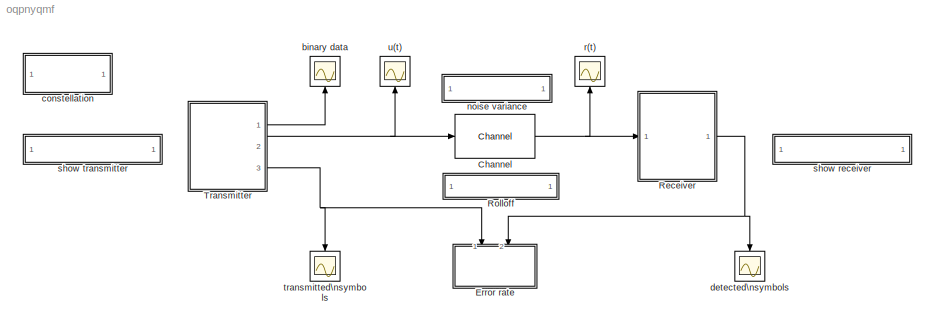
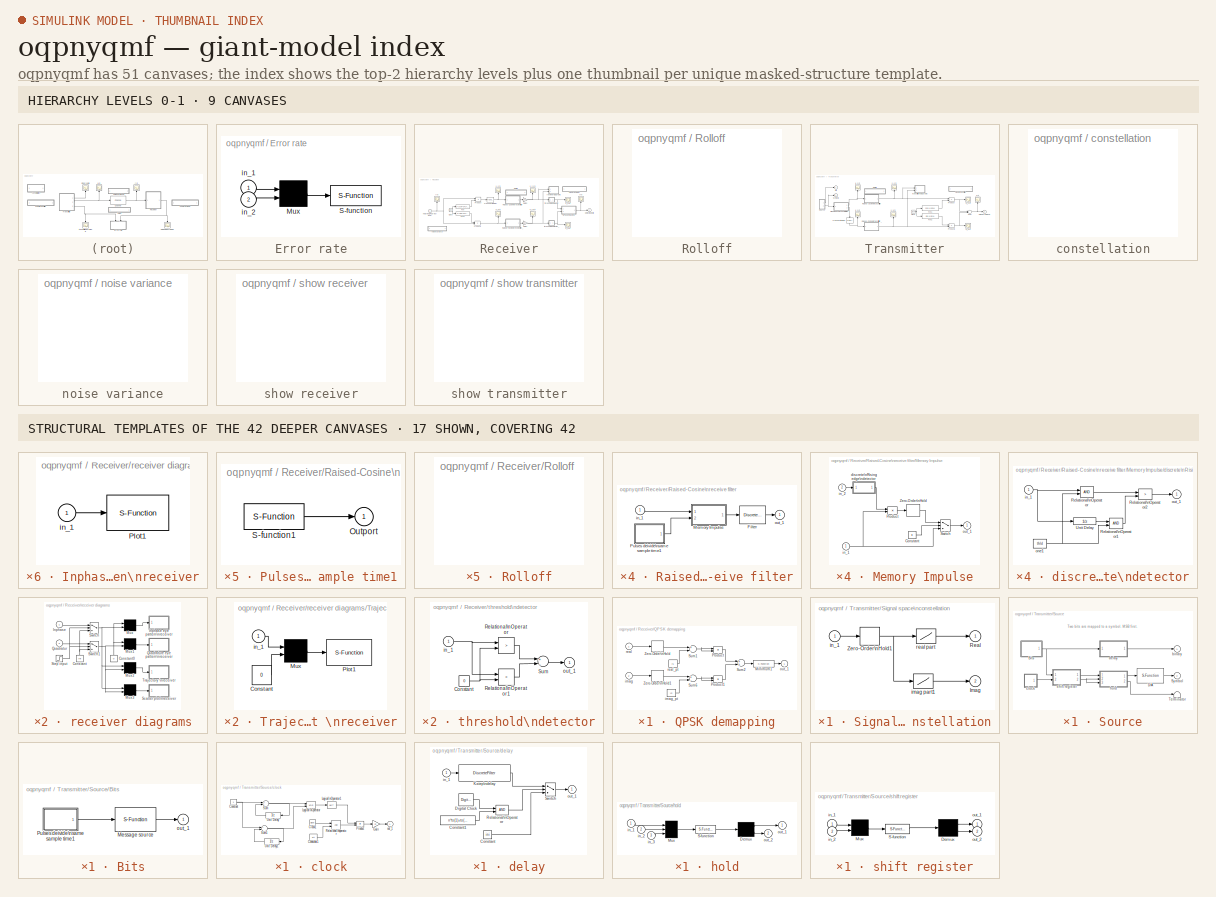
[diagram: thumbnail index - top-2 hierarchy levels (9 canvases) + 17 structural-template representatives of the remaining 42 canvases]
MODEL oqpnyqmf
KIND model
BLOCK [Reference] Channel  REF=librnew/Channel  (lib defined in mdl_aba7bc8d2a37)
  FunctionWithSeparateData = off
  Ports = [1, 1]
  RTWMemSecDataConstants = Inherit from model
  RTWMemSecDataInternal = Inherit from model
  RTWMemSecDataParameters = Inherit from model
  RTWMemSecFuncExecute = Inherit from model
  RTWMemSecFuncInitTerm = Inherit from model
  SID = 1
  ShowPortLabels = none
  SourceBlock = librnew/Channel
  SourceType = AWGN channel, fixed parameter
  SystemSampleTime = -1
  m = 0
  s = 12345
  variance = 0.00010
BLOCK [SubSystem] Error rate
  CopyFcn = sbiterr([],[],[],'CopyBlock')
  DeleteFcn = sbiterr([],[],[],'DeleteBlock')
  FunctionWithSeparateData = off
  LoadFcn = sbiterr([],[],[],'LoadBlock')
  MaskCallbackString = |||
  MaskDescription = Use the input data from the 1st port as the reference signal to detect the number of errors and error rate of the 2nd signal.
  MaskDisplay = disp('Error\\nmeter')
  MaskEnableString = on,on,on,on
  MaskHelp = The signal from the first port must be a scalar. The second input port can be a vector with a delay to the first port signal. The comparison happens only at the sampling point.
  MaskHideContents = off
  MaskIconFrame = on
  MaskIconOpaque = on
  MaskIconRotate = none
  MaskIconUnits = autoscale
  MaskInitialization = K=@1;num_lin=@2;TDelay=@3;Sample=@4;
  MaskPortRotate = default
  MaskPromptString = Bit per symbol:|Number of digits on display:|Delay between 1st port and 2nd port:|Sample time (sec):
  MaskStyleString = edit,edit,edit,edit
  MaskToolTipString = on,on,on,on
  MaskTunableValueString = on,on,on,on
  MaskType = Symbol/bit error counter
  MaskValueString = 2|10|12.5|1
  MaskVisibilityString = on,on,on,on
  MinAlgLoopOccurrences = off
  NameChangeFcn = sbiterr([],[],[],'NameChange')
  Opaque = off
  Ports = [2]
  PropExecContextOutsideSubsystem = off
  RTWSystemCode = Auto
  RequestExecContextInheritance = off
  SID = 2
  ShowPortLabels = none
  StartFcn = sbiterr([],[],[],'Start')
  StopFcn = sbiterr([],[],[],'Stop')
BLOCK [Mux] Error rate/Mux
  Inputs = 2
  Ports = [2, 1]
  SID = 5
BLOCK [S-Function] Error rate/S-function
  EnableBusSupport = off
  FunctionName = sbiterr
  Parameters = num_lin, K, TDelay, Sample
  Ports = [1]
  SID = 6
BLOCK [Inport] Error rate/in_1
  IconDisplay = Port number
  OutDataType = sfix(16)
  OutScaling = 2^0
  SID = 3
BLOCK [Inport] Error rate/in_2
  IconDisplay = Port number
  OutDataType = sfix(16)
  OutScaling = 2^0
  Port = 2
  SID = 4
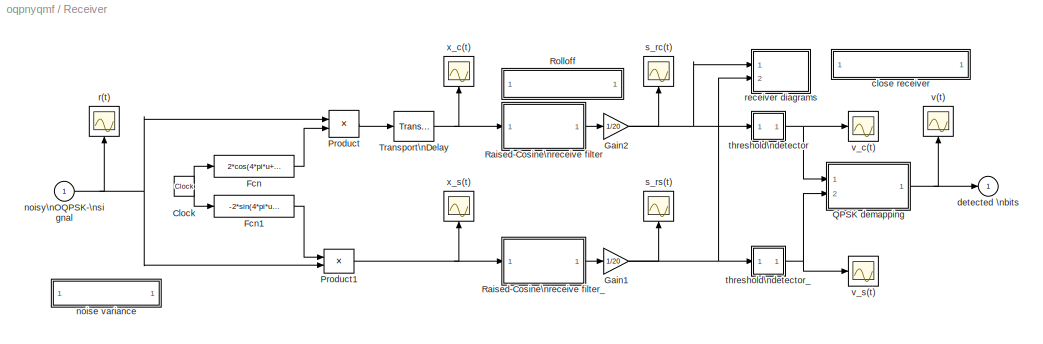
BLOCK [SubSystem] Receiver
  FunctionWithSeparateData = off
  MaskHideContents = off
  MinAlgLoopOccurrences = off
  Opaque = off
  Ports = [1, 1]
  PropExecContextOutsideSubsystem = off
  RTWSystemCode = Auto
  RequestExecContextInheritance = off
  SID = 7
  ShowPortLabels = none
BLOCK [Clock] Receiver/Clock
  Decimation = 10
  SID = 9
BLOCK [Fcn] Receiver/Fcn
  Expr = 2*cos(4*pi*u+pi/8)
  SID = 10
BLOCK [Fcn] Receiver/Fcn1
  Expr = -2*sin(4*pi*u+pi/8)
  SID = 11
BLOCK [Gain] Receiver/Gain1
  Gain = 1/20
  OutDataType = sfix(16)
  OutScaling = 2^0
  ParameterDataType = sfix(16)
  ParameterScaling = 2^0
  SID = 12
BLOCK [Gain] Receiver/Gain2
  Gain = 1/20
  OutDataType = sfix(16)
  OutScaling = 2^0
  ParameterDataType = sfix(16)
  ParameterScaling = 2^0
  SID = 13
BLOCK [Product] Receiver/Product
  OutDataType = sfix(16)
  OutScaling = 2^0
  Ports = [2, 1]
  RndMeth = Floor
  SID = 14
BLOCK [Product] Receiver/Product1
  OutDataType = sfix(16)
  OutScaling = 2^0
  Ports = [2, 1]
  RndMeth = Floor
  SID = 15
BLOCK [SubSystem] Receiver/QPSK demapping
  FunctionWithSeparateData = off
  MaskCallbackString = |||
  MaskDescription = Reverse the QASK map. Input in-phase\nand quadrature components from the\ntwo inputs. Output demapped signal.
  MaskDisplay = disp('QASK\\nC-demap')
  MaskEnableString = on,on,on,on
  MaskHelp = This block demaps a QASK mapped signal using circle constellation. You can place this block after a QAM demodulation block. The circle constellation is defined in NIC, RIC, and PIC. The symbol interval can be a two elements vector with the first element being offset. The default offset is zero. Use function MODMAP to view the constellation.
  MaskHideContents = off
  MaskIconFrame = on
  MaskIconOpaque = on
  MaskIconRotate = none
  MaskIconUnits = autoscale
  MaskInitialization = N=@1;A=@2;P=@3;td=@4;y1=apkconst(N,A,P);y2=imag(y1);y1=real(y1);
  MaskPortRotate = default
  MaskPromptString = Number of symbols on each circle NIC::|Radii for each circle RIC:|Phase shift on each circle PIC (rad):|Symbol interval and offset (sec):
  MaskStyleString = edit,edit,edit,edit
  MaskToolTipString = on,on,on,on
  MaskTunableValueString = on,on,on,on
  MaskType = QASK C-demap
  MaskValueString = [4]|[sqrt(2)]|[pi/4]|[1 0.5]
  MaskVisibilityString = on,on,on,on
  MinAlgLoopOccurrences = off
  Opaque = off
  Ports = [2, 1]
  PropExecContextOutsideSubsystem = off
  RTWSystemCode = Auto
  RequestExecContextInheritance = off
  SID = 16
  ShowPortLabels = none
BLOCK [S-Function] Receiver/QPSK demapping/Minimum1
  EnableBusSupport = off
  FunctionName = arymimai
  Parameters = 'min'
  Ports = [1, 1]
  SID = 19
BLOCK [Product] Receiver/QPSK demapping/Product
  OutDataType = sfix(16)
  OutScaling = 2^0
  Ports = [2, 1]
  RndMeth = Floor
  SID = 20
BLOCK [Product] Receiver/QPSK demapping/Product1
  OutDataType = sfix(16)
  OutScaling = 2^0
  Ports = [2, 1]
  RndMeth = Floor
  SID = 21
BLOCK [Sum] Receiver/QPSK demapping/Sum1
  Inputs = +-
  OutDataType = sfix(16)
  OutScaling = 2^0
  Ports = [2, 1]
  SID = 22
BLOCK [Sum] Receiver/QPSK demapping/Sum2
  OutDataType = sfix(16)
  OutScaling = 2^0
  Ports = [2, 1]
  SID = 23
BLOCK [Sum] Receiver/QPSK demapping/Sum6
  Inputs = +-
  OutDataType = sfix(16)
  OutScaling = 2^0
  Ports = [2, 1]
  SID = 24
BLOCK [ZeroOrderHold] Receiver/QPSK demapping/Zero-Order\nHold
  SID = 25
  SampleTime = td
BLOCK [ZeroOrderHold] Receiver/QPSK demapping/Zero-Order\nHold1
  SID = 26
  SampleTime = td
BLOCK [Inport] Receiver/QPSK demapping/imag
  IconDisplay = Port number
  OutDataType = sfix(16)
  OutScaling = 2^0
  Port = 2
  SID = 18
BLOCK [Constant] Receiver/QPSK demapping/imag_pt
  OutDataType = sfix(16)
  OutScaling = 2^0
  SID = 27
  Value = y2
BLOCK [Outport] Receiver/QPSK demapping/out_1
  IconDisplay = Port number
  SID = 29
BLOCK [Inport] Receiver/QPSK demapping/real
  IconDisplay = Port number
  OutDataType = sfix(16)
  OutScaling = 2^0
  SID = 17
BLOCK [Constant] Receiver/QPSK demapping/real_pt
  OutDataType = sfix(16)
  OutScaling = 2^0
  SID = 28
  Value = y1
BLOCK [SubSystem] Receiver/Raised-Cosine\nreceive filter
  FunctionWithSeparateData = off
  MaskCallbackString = |||||
  MaskDescription = Design a raised cosine filter and use it to filter the input signal.
  MaskDisplay = disp('R-C\\nfilter')
  MaskEnableString = on,on,on,on,on,on
  MaskHelp = This block designs a raised cosine filter using the specified parameter. The filter is used to filter the input signal. You can optionally use the sinc filter in the filtering computation.
  MaskHideContents = off
  MaskIconFrame = on
  MaskIconOpaque = on
  MaskIconRotate = none
  MaskIconUnits = autoscale
  MaskInitialization = td=@1;if length(td)>1,off=td(2);td=td(1);else,off=0;end;ts=@2;R=@3;delay=@4;fil=@5;[num,den]=rcosine(1/td(1),1/ts(1),fil,R,delay);x=@6/2;
  MaskPortRotate = default
  MaskPromptString = Symbol interval (sec):|Computation sampling time (sec):|Filter rolloff factor:|Delay step (integer to multiply symbol interval):|Filter type (FIR or IIR) / (Normal or Sqrt):|With or without sinc filter (1 or 0, suggest 1):  <repeated x4 — deduplicated; at blocks: Raised-Cosine\nreceive filter, Raised-Cosine\nreceive filter_, Raised-Cosine\ntransmit filter, Raised-Cosine\ntransmit filter_>
  MaskStyleString = edit,edit,edit,edit,edit,edit
  MaskToolTipString = on,on,on,on,on,on
  MaskTunableValueString = on,on,on,on,on,on
  MaskType = R-C filter
  MaskValueString = [1 .4999]|.05|.5|6|'FIR'|0
  MaskVisibilityString = on,on,on,on,on,on
  MinAlgLoopOccurrences = off
  Opaque = off
  Ports = [1, 1]
  PropExecContextOutsideSubsystem = off
  RTWSystemCode = Auto
  RequestExecContextInheritance = off
  SID = 30
  ShowPortLabels = none
BLOCK [DiscreteFilter] Receiver/Raised-Cosine\nreceive filter/Filter
  Denominator = den
  Numerator = num
  Ports = [1, 1]
  SID = 32
  SampleTime = ts
BLOCK [SubSystem] Receiver/Raised-Cosine\nreceive filter/Memory Impulse
  FunctionWithSeparateData = off
  MaskCallbackString = |
  MaskDescription = 1/sinc filter:
  MaskDisplay = disp('1/sinc')
  MaskEnableString = on,on
  MaskHelp = When the threshold is greater than zero, this block outputs an impulse signal, which begins at the raising edge of the second input and lasts the holding time. The impulse holds a constant amplitude, which equals the amplitude of the first input at the begining of the impulse. A clock raising edge will trigger next impulse. When the threshold is less or equal to zero, this block faithfully outputs...<+17ch>  <repeated x4 — deduplicated; at blocks: Memory Impulse>
  MaskHideContents = off
  MaskIconFrame = on
  MaskIconOpaque = on
  MaskIconRotate = none
  MaskIconUnits = autoscale
  MaskInitialization = ts=@1;thr=@2;x=thr>0;
  MaskPortRotate = default
  MaskPromptString = Holding time:|Threshold for clock pulse:
  MaskStyleString = edit,edit
  MaskToolTipString = on,on
  MaskTunableValueString = on,on
  MaskType = Impulse
  MaskValueString = ts|x
  MaskVisibilityString = on,on
  MinAlgLoopOccurrences = off
  Opaque = off
  Ports = [2, 1]
  PropExecContextOutsideSubsystem = off
  RTWSystemCode = Auto
  RequestExecContextInheritance = off
  SID = 33
  ShowPortLabels = none
BLOCK [Constant] Receiver/Raised-Cosine\nreceive filter/Memory Impulse/Constant
  OutDataType = sfix(16)
  OutScaling = 2^0
  SID = 36
  Value = x
BLOCK [Product] Receiver/Raised-Cosine\nreceive filter/Memory Impulse/Product
  OutDataType = sfix(16)
  OutScaling = 2^0
  Ports = [2, 1]
  RndMeth = Floor
  SID = 37
BLOCK [Switch] Receiver/Raised-Cosine\nreceive filter/Memory Impulse/Switch
  SID = 38
  Threshold = .5
BLOCK [ZeroOrderHold] Receiver/Raised-Cosine\nreceive filter/Memory Impulse/Zero-Order\nHold
  SID = 39
  SampleTime = ts
BLOCK [SubSystem] Receiver/Raised-Cosine\nreceive filter/Memory Impulse/discrete\nRising edge\ndetector
  FunctionWithSeparateData = off
  MaskCallbackString = |
  MaskDescription = Rising edge detection:
  MaskDisplay = disp('Edge\\nDetector')
  MaskEnableString = on,on
  MaskHelp = When the input signal rising edge passed the given shreshold, this block outputs one, otherwise outputs zero.
  MaskHideContents = off
  MaskIconFrame = on
  MaskIconOpaque = on
  MaskIconRotate = none
  MaskIconUnits = autoscale
  MaskInitialization = thld=@1;ts=@2;
  MaskPortRotate = default
  MaskPromptString = Threshold:|Sampling time:
  MaskStyleString = edit,edit
  MaskToolTipString = on,on
  MaskTunableValueString = on,on
  MaskType = Edge Detection
  MaskValueString = thr|ts
  MaskVisibilityString = on,on
  MinAlgLoopOccurrences = off
  Opaque = off
  Ports = [1, 1]
  PropExecContextOutsideSubsystem = off
  RTWSystemCode = Auto
  RequestExecContextInheritance = off
  SID = 40
  ShowPortLabels = none
BLOCK [RelationalOperator] Receiver/Raised-Cosine\nreceive filter/Memory Impulse/discrete\nRising edge\ndetector/Relational\nOperator
  Ports = [2, 1]
  SID = 42
BLOCK [RelationalOperator] Receiver/Raised-Cosine\nreceive filter/Memory Impulse/discrete\nRising edge\ndetector/Relational\nOperator1
  Ports = [2, 1]
  SID = 43
BLOCK [RelationalOperator] Receiver/Raised-Cosine\nreceive filter/Memory Impulse/discrete\nRising edge\ndetector/Relational\nOperator2
  Operator = >
  Ports = [2, 1]
  SID = 44
BLOCK [UnitDelay] Receiver/Raised-Cosine\nreceive filter/Memory Impulse/discrete\nRising edge\ndetector/Unit Delay
  SID = 45
  SampleTime = ts
BLOCK [Inport] Receiver/Raised-Cosine\nreceive filter/Memory Impulse/discrete\nRising edge\ndetector/in_1
  IconDisplay = Port number
  OutDataType = sfix(16)
  OutScaling = 2^0
  SID = 41
BLOCK [Constant] Receiver/Raised-Cosine\nreceive filter/Memory Impulse/discrete\nRising edge\ndetector/one1
  OutDataType = sfix(16)
  OutScaling = 2^0
  SID = 46
  Value = thld
BLOCK [Outport] Receiver/Raised-Cosine\nreceive filter/Memory Impulse/discrete\nRising edge\ndetector/out_1
  IconDisplay = Port number
  SID = 47
BLOCK [Inport] Receiver/Raised-Cosine\nreceive filter/Memory Impulse/in_1
  IconDisplay = Port number
  OutDataType = sfix(16)
  OutScaling = 2^0
  SID = 34
BLOCK [Inport] Receiver/Raised-Cosine\nreceive filter/Memory Impulse/in_2
  IconDisplay = Port number
  OutDataType = sfix(16)
  OutScaling = 2^0
  Port = 2
  SID = 35
BLOCK [Outport] Receiver/Raised-Cosine\nreceive filter/Memory Impulse/out_1
  IconDisplay = Port number
  SID = 48
BLOCK [SubSystem] Receiver/Raised-Cosine\nreceive filter/Pulses deivide\nsame sample time1
  FunctionWithSeparateData = off
  MaskCallbackString = ||
  MaskDescription = Vector pulses with sample rate of each pulse as Sample_time ./Divider.
  MaskDisplay = disp('Vector\\nPulse')
  MaskEnableString = on,on,on
  MaskHelp = This block generator a vector pulses. The output length is the same as the vector defined in \"Divider\". The ith element of the output has the sample time Sample_time/Divider(i). All elements in \"Divider\" must be integers.  <repeated x5 — deduplicated; at blocks: Pulses deivide\nsame sample time1>
  MaskHideContents = off
  MaskIconFrame = on
  MaskIconOpaque = on
  MaskIconRotate = none
  MaskIconUnits = autoscale
  MaskInitialization = samp_time=@1;out_divid=@2;offset=@3;
  MaskPortRotate = default
  MaskPromptString = Sample time (scalar, sec):|Divider (integer vector):|Offset (have same dimension as Divider:
  MaskStyleString = edit,edit,edit
  MaskToolTipString = on,on,on
  MaskTunableValueString = on,on,on
  MaskType = Pulse generator
  MaskValueString = td|1|off
  MaskVisibilityString = on,on,on
  MinAlgLoopOccurrences = off
  Opaque = off
  Ports = [0, 1]
  PropExecContextOutsideSubsystem = off
  RTWSystemCode = Auto
  RequestExecContextInheritance = off
  SID = 49
  ShowPortLabels = none
BLOCK [Outport] Receiver/Raised-Cosine\nreceive filter/Pulses deivide\nsame sample time1/Outport
  IconDisplay = Port number
  SID = 51
BLOCK [S-Function] Receiver/Raised-Cosine\nreceive filter/Pulses deivide\nsame sample time1/S-function1
  EnableBusSupport = off
  FunctionName = homopuls
  Parameters = samp_time, out_divid, offset
  Ports = [0, 1]
  SID = 50
BLOCK [Inport] Receiver/Raised-Cosine\nreceive filter/in_1
  IconDisplay = Port number
  OutDataType = sfix(16)
  OutScaling = 2^0
  SID = 31
BLOCK [Outport] Receiver/Raised-Cosine\nreceive filter/out_1
  IconDisplay = Port number
  SID = 52
BLOCK [SubSystem] Receiver/Raised-Cosine\nreceive filter_
  FunctionWithSeparateData = off
  MaskCallbackString = |||||
  MaskDescription = Design a raised cosine filter and use it to filter the input signal.
  MaskDisplay = disp('R-C\\nfilter')
  MaskEnableString = on,on,on,on,on,on
  MaskHelp = This block designs a raised cosine filter using the specified parameter. The filter is used to filter the input signal. You can optionally use the sinc filter in the filtering computation.
  MaskHideContents = off
  MaskIconFrame = on
  MaskIconOpaque = on
  MaskIconRotate = none
  MaskIconUnits = autoscale
  MaskInitialization = td=@1;if length(td)>1,off=td(2);td=td(1);else,off=0;end;ts=@2;R=@3;delay=@4;fil=@5;[num,den]=rcosine(1/td(1),1/ts(1),fil,R,delay);x=@6/2;
  MaskPortRotate = default
  MaskStyleString = edit,edit,edit,edit,edit,edit
  MaskToolTipString = on,on,on,on,on,on
  MaskTunableValueString = on,on,on,on,on,on
  MaskType = R-C filter
  MaskValueString = 1|.05|.5|6|'FIR'|0
  MaskVisibilityString = on,on,on,on,on,on
  MinAlgLoopOccurrences = off
  Opaque = off
  Ports = [1, 1]
  PropExecContextOutsideSubsystem = off
  RTWSystemCode = Auto
  RequestExecContextInheritance = off
  SID = 53
  ShowPortLabels = none
BLOCK [DiscreteFilter] Receiver/Raised-Cosine\nreceive filter_/Filter
  Denominator = den
  Numerator = num
  Ports = [1, 1]
  SID = 55
  SampleTime = ts
BLOCK [SubSystem] Receiver/Raised-Cosine\nreceive filter_/Memory Impulse
  FunctionWithSeparateData = off
  MaskCallbackString = |
  MaskDescription = 1/sinc filter:
  MaskDisplay = disp('1/sinc')
  MaskEnableString = on,on
  MaskHideContents = off
  MaskIconFrame = on
  MaskIconOpaque = on
  MaskIconRotate = none
  MaskIconUnits = autoscale
  MaskInitialization = ts=@1;thr=@2;x=thr>0;
  MaskPortRotate = default
  MaskPromptString = Holding time:|Threshold for clock pulse:
  MaskStyleString = edit,edit
  MaskToolTipString = on,on
  MaskTunableValueString = on,on
  MaskType = Impulse
  MaskValueString = ts|x
  MaskVisibilityString = on,on
  MinAlgLoopOccurrences = off
  Opaque = off
  Ports = [2, 1]
  PropExecContextOutsideSubsystem = off
  RTWSystemCode = Auto
  RequestExecContextInheritance = off
  SID = 56
  ShowPortLabels = none
BLOCK [Constant] Receiver/Raised-Cosine\nreceive filter_/Memory Impulse/Constant
  OutDataType = sfix(16)
  OutScaling = 2^0
  SID = 59
  Value = x
BLOCK [Product] Receiver/Raised-Cosine\nreceive filter_/Memory Impulse/Product
  OutDataType = sfix(16)
  OutScaling = 2^0
  Ports = [2, 1]
  RndMeth = Floor
  SID = 60
BLOCK [Switch] Receiver/Raised-Cosine\nreceive filter_/Memory Impulse/Switch
  SID = 61
  Threshold = .5
BLOCK [ZeroOrderHold] Receiver/Raised-Cosine\nreceive filter_/Memory Impulse/Zero-Order\nHold
  SID = 62
  SampleTime = ts
BLOCK [SubSystem] Receiver/Raised-Cosine\nreceive filter_/Memory Impulse/discrete\nRising edge\ndetector
  FunctionWithSeparateData = off
  MaskCallbackString = |
  MaskDescription = Rising edge detection:
  MaskDisplay = disp('Edge\\nDetector')
  MaskEnableString = on,on
  MaskHelp = When the input signal rising edge passed the given shreshold, this block outputs one, otherwise outputs zero.
  MaskHideContents = off
  MaskIconFrame = on
  MaskIconOpaque = on
  MaskIconRotate = none
  MaskIconUnits = autoscale
  MaskInitialization = thld=@1;ts=@2;
  MaskPortRotate = default
  MaskPromptString = Threshold:|Sampling time:
  MaskStyleString = edit,edit
  MaskToolTipString = on,on
  MaskTunableValueString = on,on
  MaskType = Edge Detection
  MaskValueString = thr|ts
  MaskVisibilityString = on,on
  MinAlgLoopOccurrences = off
  Opaque = off
  Ports = [1, 1]
  PropExecContextOutsideSubsystem = off
  RTWSystemCode = Auto
  RequestExecContextInheritance = off
  SID = 63
  ShowPortLabels = none
BLOCK [RelationalOperator] Receiver/Raised-Cosine\nreceive filter_/Memory Impulse/discrete\nRising edge\ndetector/Relational\nOperator
  Ports = [2, 1]
  SID = 65
BLOCK [RelationalOperator] Receiver/Raised-Cosine\nreceive filter_/Memory Impulse/discrete\nRising edge\ndetector/Relational\nOperator1
  Ports = [2, 1]
  SID = 66
BLOCK [RelationalOperator] Receiver/Raised-Cosine\nreceive filter_/Memory Impulse/discrete\nRising edge\ndetector/Relational\nOperator2
  Operator = >
  Ports = [2, 1]
  SID = 67
BLOCK [UnitDelay] Receiver/Raised-Cosine\nreceive filter_/Memory Impulse/discrete\nRising edge\ndetector/Unit Delay
  SID = 68
  SampleTime = ts
BLOCK [Inport] Receiver/Raised-Cosine\nreceive filter_/Memory Impulse/discrete\nRising edge\ndetector/in_1
  IconDisplay = Port number
  OutDataType = sfix(16)
  OutScaling = 2^0
  SID = 64
BLOCK [Constant] Receiver/Raised-Cosine\nreceive filter_/Memory Impulse/discrete\nRising edge\ndetector/one1
  OutDataType = sfix(16)
  OutScaling = 2^0
  SID = 69
  Value = thld
BLOCK [Outport] Receiver/Raised-Cosine\nreceive filter_/Memory Impulse/discrete\nRising edge\ndetector/out_1
  IconDisplay = Port number
  SID = 70
BLOCK [Inport] Receiver/Raised-Cosine\nreceive filter_/Memory Impulse/in_1
  IconDisplay = Port number
  OutDataType = sfix(16)
  OutScaling = 2^0
  SID = 57
BLOCK [Inport] Receiver/Raised-Cosine\nreceive filter_/Memory Impulse/in_2
  IconDisplay = Port number
  OutDataType = sfix(16)
  OutScaling = 2^0
  Port = 2
  SID = 58
BLOCK [Outport] Receiver/Raised-Cosine\nreceive filter_/Memory Impulse/out_1
  IconDisplay = Port number
  SID = 71
BLOCK [SubSystem] Receiver/Raised-Cosine\nreceive filter_/Pulses deivide\nsame sample time1
  FunctionWithSeparateData = off
  MaskCallbackString = ||
  MaskDescription = Vector pulses with sample rate of each pulse as Sample_time ./Divider.
  MaskDisplay = disp('Vector\\nPulse')
  MaskEnableString = on,on,on
  MaskHideContents = off
  MaskIconFrame = on
  MaskIconOpaque = on
  MaskIconRotate = none
  MaskIconUnits = autoscale
  MaskInitialization = samp_time=@1;out_divid=@2;offset=@3;
  MaskPortRotate = default
  MaskPromptString = Sample time (scalar, sec):|Divider (integer vector):|Offset (have same dimension as Divider:
  MaskStyleString = edit,edit,edit
  MaskToolTipString = on,on,on
  MaskTunableValueString = on,on,on
  MaskType = Pulse generator
  MaskValueString = td|1|off
  MaskVisibilityString = on,on,on
  MinAlgLoopOccurrences = off
  Opaque = off
  Ports = [0, 1]
  PropExecContextOutsideSubsystem = off
  RTWSystemCode = Auto
  RequestExecContextInheritance = off
  SID = 72
  ShowPortLabels = none
BLOCK [Outport] Receiver/Raised-Cosine\nreceive filter_/Pulses deivide\nsame sample time1/Outport
  IconDisplay = Port number
  SID = 74
BLOCK [S-Function] Receiver/Raised-Cosine\nreceive filter_/Pulses deivide\nsame sample time1/S-function1
  EnableBusSupport = off
  FunctionName = homopuls
  Parameters = samp_time, out_divid, offset
  Ports = [0, 1]
  SID = 73
BLOCK [Inport] Receiver/Raised-Cosine\nreceive filter_/in_1
  IconDisplay = Port number
  OutDataType = sfix(16)
  OutScaling = 2^0
  SID = 54
BLOCK [Outport] Receiver/Raised-Cosine\nreceive filter_/out_1
  IconDisplay = Port number
  SID = 75
BLOCK [SubSystem] Receiver/Rolloff
  FunctionWithSeparateData = off
  MaskDisplay = disp('Rolloff-Factor')
  MaskHideContents = off
  MaskIconFrame = on
  MaskIconOpaque = on
  MaskIconRotate = none
  MaskIconUnits = autoscale
  MaskPortRotate = default
  MaskType = rolloff
  MinAlgLoopOccurrences = off
  Opaque = off
  OpenFcn = setrloff
  Ports = []
  PropExecContextOutsideSubsystem = off
  RTWSystemCode = Auto
  RequestExecContextInheritance = off
  SID = 76
  ShowPortLabels = none
BLOCK [TransportDelay] Receiver/Transport\nDelay
  BufferSize = 200
  DelayTime = .4999
  SID = 77
BLOCK [SubSystem] Receiver/close receiver
  FunctionWithSeparateData = off
  MaskDisplay = disp('close receiver')
  MaskHideContents = off
  MaskIconFrame = on
  MaskIconOpaque = on
  MaskIconRotate = none
  MaskIconUnits = autoscale
  MaskPortRotate = default
  MaskType = close
  MinAlgLoopOccurrences = off
  Opaque = off
  OpenFcn = closerec
  Ports = []
  PropExecContextOutsideSubsystem = off
  RTWSystemCode = Auto
  RequestExecContextInheritance = off
  SID = 78
  ShowPortLabels = none
BLOCK [Outport] Receiver/detected \nbits
  IconDisplay = Port number
  SID = 128
BLOCK [SubSystem] Receiver/noise variance
  FunctionWithSeparateData = off
  MaskDisplay = disp('Noise variance')
  MaskHideContents = off
  MaskIconFrame = on
  MaskIconOpaque = on
  MaskIconRotate = none
  MaskIconUnits = autoscale
  MaskPortRotate = default
  MaskType = noise
  MinAlgLoopOccurrences = off
  Opaque = off
  OpenFcn = setnoise
  Ports = []
  PropExecContextOutsideSubsystem = off
  RTWSystemCode = Auto
  RequestExecContextInheritance = off
  SID = 79
  ShowPortLabels = none
BLOCK [Inport] Receiver/noisy\nOQPSK-\nsignal
  IconDisplay = Port number
  OutDataType = sfix(16)
  OutScaling = 2^0
  SID = 8
BLOCK [Scope] Receiver/r(t)
  DataFormat = Array
  Floating = off
  NumInputPorts = 1
  Ports = [1]
  SID = 80
  SampleTime = 0
  TimeRange = 25.000000
  YMax = 1.500000
  YMin = -1.500000
BLOCK [SubSystem] Receiver/receiver diagrams
  FunctionWithSeparateData = off
  MaskCallbackString = ||
  MaskDescription = Eye pattern, signal space trajectory and scatter plot
  MaskDisplay = plot(0,0,100,100,x,y)
  MaskEnableString = on,on,on
  MaskHideContents = off
  MaskIconFrame = on
  MaskIconOpaque = on
  MaskIconRotate = none
  MaskIconUnits = autoscale
  MaskInitialization = [x, y] = srcsicon(10);
  MaskPortRotate = default
  MaskPromptString = Plot start time:|Samples per time slot (2*T):|Decision offset:
  MaskStyleString = edit,edit,edit
  MaskToolTipString = on,on,on
  MaskTunableValueString = on,on,on
  MaskType = 2D-Diagrams
  MaskValueString = 12.5001|40|0
  MaskVariables = starttime=@1;anzahl=@2;offset=@3;
  MaskVisibilityString = on,on,on
  MinAlgLoopOccurrences = off
  Opaque = off
  Ports = [2]
  PropExecContextOutsideSubsystem = off
  RTWSystemCode = Auto
  RequestExecContextInheritance = off
  SID = 81
  ShowPortLabels = none
BLOCK [Constant] Receiver/receiver diagrams/Constant
  OutDataType = sfix(16)
  OutScaling = 2^0
  SID = 84
  Value = Inf
BLOCK [Constant] Receiver/receiver diagrams/Constant0
  OutDataType = sfix(16)
  OutScaling = 2^0
  SID = 85
  Value = 0
BLOCK [Inport] Receiver/receiver diagrams/Inphase
  IconDisplay = Port number
  OutDataType = sfix(16)
  OutScaling = 2^0
  SID = 82
BLOCK [SubSystem] Receiver/receiver diagrams/Inphase eye pattern\nreceiver
  CopyFcn = eyesampl([],[],[],'CopyBlock')
  DeleteFcn = eyesampl([],[],[],'DeleteBlock')
  FunctionWithSeparateData = off
  LoadFcn = eyesampl([],[],[],'LoadBlock')
  MaskCallbackString = |||||
  MaskDescription = Produce eye-pattern diagram and/or scatter plot.
  MaskDisplay = plot(0,0,100,100,x,y);
  MaskEnableString = on,on,on,on,on,on
  MaskHelp = This plot opens one, or two plots by assigning the line type parameters. The scatter plot point is selected by the decision point in the first parameter entry. A decision line is drawn in the eye-pattern diagram. The plot is updated at the plot update sample time point.  <repeated x6 — deduplicated; at blocks: Inphase eye pattern\nreceiver, Quadrature eye pattern\nreceiver, Scatter plot\nreceiver, Inphase eye pattern\ntransmitter, Quadrature eye pattern\ntransmitter, Scatter plot\ntransmitter>
  MaskHideContents = off
  MaskIconFrame = on
  MaskIconOpaque = on
  MaskIconRotate = none
  MaskIconUnits = autoscale
  MaskInitialization = time_range=@1;boundary=@2;kept_length=@3;eye_line=@4;scatter_line=@5;two_d_line=@6;[x,y]=srcsicon(10);
  MaskPortRotate = default
  MaskPromptString = [Symbol interval, plot offset, decision point offset]:|Lower and upper bound of in-coming signal (1x2 vector):|Number of saved traces:|Line-type for eye-pattern diagram (0 for no plot):|Line-type for scatter plot (0 for no plot):|Plot update sample time:  <repeated x6 — deduplicated; at blocks: Inphase eye pattern\nreceiver, Quadrature eye pattern\nreceiver, Scatter plot\nreceiver, Inphase eye pattern\ntransmitter, Quadrature eye pattern\ntransmitter, Scatter plot\ntransmitter>
  MaskStyleString = edit,edit,edit,edit,edit,edit
  MaskToolTipString = on,on,on,on,on,on
  MaskTunableValueString = on,on,on,on,on,on
  MaskType = Eye-diagram/scatter plot
  MaskValueString = [2 0 1+offset]|[-1.5 1.5]|0|'w-/r-'|0|2/anzahl
  MaskVisibilityString = on,on,on,on,on,on
  MinAlgLoopOccurrences = off
  NameChangeFcn = eyesampl([],[],[],'NameChange')
  Opaque = off
  Ports = [1]
  PropExecContextOutsideSubsystem = off
  RTWSystemCode = Auto
  RequestExecContextInheritance = off
  SID = 86
  ShowPortLabels = none
  StartFcn = eyesampl([],[],[],'Start')
  StopFcn = eyesampl([],[],[],'Stop')
BLOCK [S-Function] Receiver/receiver diagrams/Inphase eye pattern\nreceiver/Plot1
  EnableBusSupport = off
  FunctionName = eyesampl
  Parameters = time_range, boundary, kept_length, eye_line, scatter_line, two_d_line
  Ports = [1]
  SID = 88
BLOCK [Inport] Receiver/receiver diagrams/Inphase eye pattern\nreceiver/in_1
  IconDisplay = Port number
  OutDataType = sfix(16)
  OutScaling = 2^0
  SID = 87
BLOCK [Mux] Receiver/receiver diagrams/Mux
  Inputs = 2
  Ports = [2, 1]
  SID = 89
BLOCK [Mux] Receiver/receiver diagrams/Mux1
  Inputs = 2
  Ports = [2, 1]
  SID = 90
BLOCK [Mux] Receiver/receiver diagrams/Mux2
  Inputs = 2
  Ports = [2, 1]
  SID = 91
BLOCK [Mux] Receiver/receiver diagrams/Mux3
  Inputs = 2
  Ports = [2, 1]
  SID = 92
BLOCK [Inport] Receiver/receiver diagrams/Quadratur
  IconDisplay = Port number
  OutDataType = sfix(16)
  OutScaling = 2^0
  Port = 2
  SID = 83
BLOCK [SubSystem] Receiver/receiver diagrams/Quadrature eye pattern\nreceiver
  CopyFcn = eyesampl([],[],[],'CopyBlock')
  DeleteFcn = eyesampl([],[],[],'DeleteBlock')
  FunctionWithSeparateData = off
  LoadFcn = eyesampl([],[],[],'LoadBlock')
  MaskCallbackString = |||||
  MaskDescription = Produce eye-pattern diagram and/or scatter plot.
  MaskDisplay = plot(0,0,100,100,x,y);
  MaskEnableString = on,on,on,on,on,on
  MaskHideContents = off
  MaskIconFrame = on
  MaskIconOpaque = on
  MaskIconRotate = none
  MaskIconUnits = autoscale
  MaskInitialization = time_range=@1;boundary=@2;kept_length=@3;eye_line=@4;scatter_line=@5;two_d_line=@6;[x,y]=srcsicon(10);
  MaskPortRotate = default
  MaskStyleString = edit,edit,edit,edit,edit,edit
  MaskToolTipString = on,on,on,on,on,on
  MaskTunableValueString = on,on,on,on,on,on
  MaskType = Eye-diagram/scatter plot
  MaskValueString = [2 0 1+offset]|[-1.5 1.5]|0|'w-/r-'|0|2/anzahl
  MaskVisibilityString = on,on,on,on,on,on
  MinAlgLoopOccurrences = off
  NameChangeFcn = eyesampl([],[],[],'NameChange')
  Opaque = off
  Ports = [1]
  PropExecContextOutsideSubsystem = off
  RTWSystemCode = Auto
  RequestExecContextInheritance = off
  SID = 93
  ShowPortLabels = none
  StartFcn = eyesampl([],[],[],'Start')
  StopFcn = eyesampl([],[],[],'Stop')
BLOCK [S-Function] Receiver/receiver diagrams/Quadrature eye pattern\nreceiver/Plot1
  EnableBusSupport = off
  FunctionName = eyesampl
  Parameters = time_range, boundary, kept_length, eye_line, scatter_line, two_d_line
  Ports = [1]
  SID = 95
BLOCK [Inport] Receiver/receiver diagrams/Quadrature eye pattern\nreceiver/in_1
  IconDisplay = Port number
  OutDataType = sfix(16)
  OutScaling = 2^0
  SID = 94
BLOCK [SubSystem] Receiver/receiver diagrams/Scatter plot\nreceiver
  CopyFcn = eyesampl([],[],[],'CopyBlock')
  DeleteFcn = eyesampl([],[],[],'DeleteBlock')
  FunctionWithSeparateData = off
  LoadFcn = eyesampl([],[],[],'LoadBlock')
  MaskCallbackString = |||||
  MaskDescription = Produce eye-pattern diagram and/or scatter plot.
  MaskDisplay = plot(0,0,100,100,x,y);
  MaskEnableString = on,on,on,on,on,on
  MaskHideContents = off
  MaskIconFrame = on
  MaskIconOpaque = on
  MaskIconRotate = none
  MaskIconUnits = autoscale
  MaskInitialization = time_range=@1;boundary=@2;kept_length=@3;eye_line=@4;scatter_line=@5;two_d_line=@6;[x,y]=srcsicon(10);
  MaskPortRotate = default
  MaskStyleString = edit,edit,edit,edit,edit,edit
  MaskToolTipString = on,on,on,on,on,on
  MaskTunableValueString = on,on,on,on,on,on
  MaskType = Eye-diagram/scatter plot
  MaskValueString = [1 .0 .5]|[-1.5 1.5]|0|0|'b.'|[.5 offset]
  MaskVisibilityString = on,on,on,on,on,on
  MinAlgLoopOccurrences = off
  NameChangeFcn = eyesampl([],[],[],'NameChange')
  Opaque = off
  Ports = [1]
  PropExecContextOutsideSubsystem = off
  RTWSystemCode = Auto
  RequestExecContextInheritance = off
  SID = 96
  ShowPortLabels = none
  StartFcn = eyesampl([],[],[],'Start')
  StopFcn = eyesampl([],[],[],'Stop')
BLOCK [S-Function] Receiver/receiver diagrams/Scatter plot\nreceiver/Plot1
  EnableBusSupport = off
  FunctionName = eyesampl
  Parameters = time_range, boundary, kept_length, eye_line, scatter_line, two_d_line
  Ports = [1]
  SID = 98
BLOCK [Inport] Receiver/receiver diagrams/Scatter plot\nreceiver/in_1
  IconDisplay = Port number
  OutDataType = sfix(16)
  OutScaling = 2^0
  SID = 97
BLOCK [Step] Receiver/receiver diagrams/Step input
  SID = 99
  SampleTime = 1
  Time = starttime
BLOCK [Switch] Receiver/receiver diagrams/Switch
  SID = 100
  Threshold = 1
BLOCK [Switch] Receiver/receiver diagrams/Switch1
  SID = 101
  Threshold = 1
BLOCK [SubSystem] Receiver/receiver diagrams/Trajectory \nreceiver
  CopyFcn = eyediasi([],[],[],'CopyBlock')
  DeleteFcn = eyediasi([],[],[],'DeleteBlock')
  FunctionWithSeparateData = off
  LoadFcn = eyediasi([],[],[],'LoadBlock')
  MaskCallbackString = |||||
  MaskDescription = Produce eye-pattern diagram/scatter\nplot/x-y plot with the rising edge of the second input as the decision line.
  MaskDisplay = plot(0,0,100,100,x,y,v,w);
  MaskEnableString = on,on,on,on,on,on
  MaskHelp = This plot opens one, two, or three plots by assigning the line type parameters. The scatter plot point is selected by the rising edge of a trigger signal. A decision line is drawn at the rising edge of the trigger signal.
  MaskHideContents = off
  MaskIconFrame = on
  MaskIconOpaque = on
  MaskIconRotate = none
  MaskIconUnits = autoscale
  MaskInitialization = time_range=@1;boundary=@2;kept_length=@3;eye_line=@4;scatter_line=@5;two_d_line=@6;[x,y]=srcsicon(10);[v,w]=trigicon(0,25,get_param(gcb,'orientation'),2);
  MaskPortRotate = default
  MaskPromptString = Eye-pattern plot time frame:|Lower and upper bound of in-coming signal (1x2 vector):|Number of saved traces:|Line-type for eye-pattern diagram (0 for no plot):|Line-type for scatter plot (0 for no plot):|Line-type for x-y plot (0 for no plot):
  MaskStyleString = edit,edit,edit,edit,edit,edit
  MaskToolTipString = on,on,on,on,on,on
  MaskTunableValueString = on,on,on,on,on,on
  MaskType = Eye-diagram/scatter plot
  MaskValueString = [2 0 1]|[-1.5 1.5]|0|0|0|'g-'
  MaskVisibilityString = on,on,on,on,on,on
  MinAlgLoopOccurrences = off
  NameChangeFcn = eyediasi([],[],[],'NameChange')
  Opaque = off
  Ports = [1]
  PropExecContextOutsideSubsystem = off
  RTWSystemCode = Auto
  RequestExecContextInheritance = off
  SID = 102
  ShowPortLabels = none
  StartFcn = eyediasi([],[],[],'Start')
  StopFcn = eyediasi([],[],[],'Stop')
BLOCK [Constant] Receiver/receiver diagrams/Trajectory \nreceiver/Constant
  OutDataType = sfix(16)
  OutScaling = 2^0
  SID = 104
  Value = 0
BLOCK [Mux] Receiver/receiver diagrams/Trajectory \nreceiver/Mux
  Inputs = 2
  Ports = [2, 1]
  SID = 105
BLOCK [S-Function] Receiver/receiver diagrams/Trajectory \nreceiver/Plot1
  EnableBusSupport = off
  FunctionName = eyediasi
  Parameters = time_range, boundary, kept_length, eye_line, scatter_line, two_d_line
  Ports = [1]
  SID = 106
BLOCK [Inport] Receiver/receiver diagrams/Trajectory \nreceiver/in_1
  IconDisplay = Port number
  OutDataType = sfix(16)
  OutScaling = 2^0
  SID = 103
BLOCK [Scope] Receiver/s_rc(t)
  DataFormat = Array
  Floating = off
  NumInputPorts = 1
  Ports = [1]
  SID = 107
  SampleTime = 0
  TimeRange = 25.000000
  YMax = 1.500000
  YMin = -1.500000
BLOCK [Scope] Receiver/s_rs(t)
  DataFormat = Array
  Floating = off
  NumInputPorts = 1
  Ports = [1]
  SID = 108
  SampleTime = 0
  TimeRange = 25.000000
  YMax = 1.500000
  YMin = -1.500000
BLOCK [SubSystem] Receiver/threshold\ndetector
  FunctionWithSeparateData = off
  MaskDescription = y = sign(x)
  MaskDisplay = plot(-50,-50,50,50,[-50,50],[0,0],[0,0],[-50,50],[-40,0],[-30,-30],[0,40],[30,30])
  MaskHelp = Sign Function:<path> = 1 if x > 0<path> = 0 if x = 0<path> = -1 if x < 0
  MaskHideContents = off
  MaskIconFrame = on
  MaskIconOpaque = on
  MaskIconRotate = none
  MaskIconUnits = autoscale
  MaskPortRotate = default
  MaskType = Sign
  MinAlgLoopOccurrences = off
  Opaque = off
  Ports = [1, 1]
  PropExecContextOutsideSubsystem = off
  RTWSystemCode = Auto
  RequestExecContextInheritance = off
  SID = 109
  ShowPortLabels = none
BLOCK [Constant] Receiver/threshold\ndetector/Constant
  OutDataType = sfix(16)
  OutScaling = 2^0
  SID = 111
  Value = 0
BLOCK [RelationalOperator] Receiver/threshold\ndetector/Relational\nOperator
  Operator = >
  Ports = [2, 1]
  SID = 112
BLOCK [RelationalOperator] Receiver/threshold\ndetector/Relational\nOperator1
  Operator = <
  Ports = [2, 1]
  SID = 113
BLOCK [Sum] Receiver/threshold\ndetector/Sum
  Inputs = +-
  OutDataType = sfix(16)
  OutScaling = 2^0
  Ports = [2, 1]
  SID = 114
BLOCK [Inport] Receiver/threshold\ndetector/in_1
  IconDisplay = Port number
  OutDataType = sfix(16)
  OutScaling = 2^0
  SID = 110
BLOCK [Outport] Receiver/threshold\ndetector/out_1
  IconDisplay = Port number
  SID = 115
BLOCK [SubSystem] Receiver/threshold\ndetector_
  FunctionWithSeparateData = off
  MaskDescription = y = sign(x)
  MaskDisplay = plot(-50,-50,50,50,[-50,50],[0,0],[0,0],[-50,50],[-40,0],[-30,-30],[0,40],[30,30])
  MaskHelp = Sign Function:<path> = 1 if x > 0<path> = 0 if x = 0<path> = -1 if x < 0
  MaskHideContents = off
  MaskIconFrame = on
  MaskIconOpaque = on
  MaskIconRotate = none
  MaskIconUnits = autoscale
  MaskPortRotate = default
  MaskType = Sign
  MinAlgLoopOccurrences = off
  Opaque = off
  Ports = [1, 1]
  PropExecContextOutsideSubsystem = off
  RTWSystemCode = Auto
  RequestExecContextInheritance = off
  SID = 116
  ShowPortLabels = none
BLOCK [Constant] Receiver/threshold\ndetector_/Constant
  OutDataType = sfix(16)
  OutScaling = 2^0
  SID = 118
  Value = 0
BLOCK [RelationalOperator] Receiver/threshold\ndetector_/Relational\nOperator
  Operator = >
  Ports = [2, 1]
  SID = 119
BLOCK [RelationalOperator] Receiver/threshold\ndetector_/Relational\nOperator1
  Operator = <
  Ports = [2, 1]
  SID = 120
BLOCK [Sum] Receiver/threshold\ndetector_/Sum
  Inputs = +-
  OutDataType = sfix(16)
  OutScaling = 2^0
  Ports = [2, 1]
  SID = 121
BLOCK [Inport] Receiver/threshold\ndetector_/in_1
  IconDisplay = Port number
  OutDataType = sfix(16)
  OutScaling = 2^0
  SID = 117
BLOCK [Outport] Receiver/threshold\ndetector_/out_1
  IconDisplay = Port number
  SID = 122
BLOCK [Scope] Receiver/v(t)
  DataFormat = Array
  Floating = off
  NumInputPorts = 1
  Ports = [1]
  SID = 123
  SampleTime = 0
  TimeRange = 25.000000
  YMax = 3.000000
  YMin = -3.000000
BLOCK [Scope] Receiver/v_c(t)
  DataFormat = Array
  Floating = off
  NumInputPorts = 1
  Ports = [1]
  SID = 124
  SampleTime = 0
  TimeRange = 25.000000
  YMax = 1.500000
  YMin = -1.500000
BLOCK [Scope] Receiver/v_s(t)
  DataFormat = Array
  Floating = off
  NumInputPorts = 1
  Ports = [1]
  SID = 125
  SampleTime = 0
  TimeRange = 25.000000
  YMax = 1.500000
  YMin = -1.500000
BLOCK [Scope] Receiver/x_c(t)
  DataFormat = Array
  Floating = off
  NumInputPorts = 1
  Ports = [1]
  SID = 126
  SampleTime = 0
  TimeRange = 25.000000
  YMax = 1.500000
  YMin = -1.500000
BLOCK [Scope] Receiver/x_s(t)
  DataFormat = Array
  Floating = off
  NumInputPorts = 1
  Ports = [1]
  SID = 127
  SampleTime = 0
  TimeRange = 25.000000
  YMax = 1.500000
  YMin = -1.500000
BLOCK [SubSystem] Rolloff
  FunctionWithSeparateData = off
  MaskDisplay = disp('Rolloff-Factor')
  MaskHideContents = off
  MaskIconFrame = on
  MaskIconOpaque = on
  MaskIconRotate = none
  MaskIconUnits = autoscale
  MaskPortRotate = default
  MaskType = rolloff
  MinAlgLoopOccurrences = off
  Opaque = off
  OpenFcn = setrloff
  Ports = []
  PropExecContextOutsideSubsystem = off
  RTWSystemCode = Auto
  RequestExecContextInheritance = off
  SID = 129
  ShowPortLabels = none
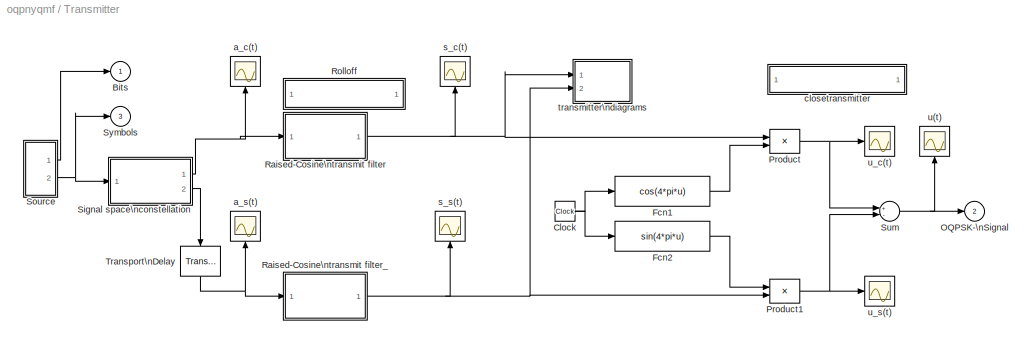
BLOCK [SubSystem] Transmitter
  FunctionWithSeparateData = off
  MaskHideContents = off
  MinAlgLoopOccurrences = off
  Opaque = off
  Ports = [0, 3]
  PropExecContextOutsideSubsystem = off
  RTWSystemCode = Auto
  RequestExecContextInheritance = off
  SID = 130
  ShowPortLabels = none
BLOCK [Outport] Transmitter/Bits
  IconDisplay = Port number
  SID = 277
BLOCK [Clock] Transmitter/Clock
  Decimation = 10
  SID = 131
BLOCK [Fcn] Transmitter/Fcn1
  Expr = cos(4*pi*u)
  SID = 132
BLOCK [Fcn] Transmitter/Fcn2
  Expr = sin(4*pi*u)
  SID = 133
BLOCK [Outport] Transmitter/OQPSK-\nSignal
  IconDisplay = Port number
  Port = 2
  SID = 278
BLOCK [Product] Transmitter/Product
  OutDataType = sfix(16)
  OutScaling = 2^0
  Ports = [2, 1]
  RndMeth = Floor
  SID = 134
BLOCK [Product] Transmitter/Product1
  OutDataType = sfix(16)
  OutScaling = 2^0
  Ports = [2, 1]
  RndMeth = Floor
  SID = 135
BLOCK [SubSystem] Transmitter/Raised-Cosine\ntransmit filter
  FunctionWithSeparateData = off
  MaskCallbackString = |||||
  MaskDescription = Design a raised cosine filter and use it to filter the input signal.
  MaskDisplay = disp('R-C\\nfilter')
  MaskEnableString = on,on,on,on,on,on
  MaskHelp = This block designs a raised cosine filter using the specified parameter. The filter is used to filter the input signal. You can optionally use the sinc filter in the filtering computation.
  MaskHideContents = off
  MaskIconFrame = on
  MaskIconOpaque = on
  MaskIconRotate = none
  MaskIconUnits = autoscale
  MaskInitialization = td=@1;if length(td)>1,off=td(2);td=td(1);else,off=0;end;ts=@2;R=@3;delay=@4;fil=@5;[num,den]=rcosine(1/td(1),1/ts(1),fil,R,delay);x=@6/2;
  MaskPortRotate = default
  MaskStyleString = edit,edit,edit,edit,edit,edit
  MaskToolTipString = on,on,on,on,on,on
  MaskTunableValueString = on,on,on,on,on,on
  MaskType = R-C filter
  MaskValueString = 1|.05|.5|6|'FIR'|1
  MaskVisibilityString = on,on,on,on,on,on
  MinAlgLoopOccurrences = off
  Opaque = off
  Ports = [1, 1]
  PropExecContextOutsideSubsystem = off
  RTWSystemCode = Auto
  RequestExecContextInheritance = off
  SID = 136
  ShowPortLabels = none
BLOCK [DiscreteFilter] Transmitter/Raised-Cosine\ntransmit filter/Filter
  Denominator = den
  Numerator = num
  Ports = [1, 1]
  SID = 138
  SampleTime = ts
BLOCK [SubSystem] Transmitter/Raised-Cosine\ntransmit filter/Memory Impulse
  FunctionWithSeparateData = off
  MaskCallbackString = |
  MaskDescription = 1/sinc filter:
  MaskDisplay = disp('1/sinc')
  MaskEnableString = on,on
  MaskHideContents = off
  MaskIconFrame = on
  MaskIconOpaque = on
  MaskIconRotate = none
  MaskIconUnits = autoscale
  MaskInitialization = ts=@1;thr=@2;x=thr>0;
  MaskPortRotate = default
  MaskPromptString = Holding time:|Threshold for clock pulse:
  MaskStyleString = edit,edit
  MaskToolTipString = on,on
  MaskTunableValueString = on,on
  MaskType = Impulse
  MaskValueString = ts|x
  MaskVisibilityString = on,on
  MinAlgLoopOccurrences = off
  Opaque = off
  Ports = [2, 1]
  PropExecContextOutsideSubsystem = off
  RTWSystemCode = Auto
  RequestExecContextInheritance = off
  SID = 139
  ShowPortLabels = none
BLOCK [Constant] Transmitter/Raised-Cosine\ntransmit filter/Memory Impulse/Constant
  OutDataType = sfix(16)
  OutScaling = 2^0
  SID = 142
  Value = x
BLOCK [Product] Transmitter/Raised-Cosine\ntransmit filter/Memory Impulse/Product
  OutDataType = sfix(16)
  OutScaling = 2^0
  Ports = [2, 1]
  RndMeth = Floor
  SID = 143
BLOCK [Switch] Transmitter/Raised-Cosine\ntransmit filter/Memory Impulse/Switch
  SID = 144
  Threshold = .5
BLOCK [ZeroOrderHold] Transmitter/Raised-Cosine\ntransmit filter/Memory Impulse/Zero-Order\nHold
  SID = 145
  SampleTime = ts
BLOCK [SubSystem] Transmitter/Raised-Cosine\ntransmit filter/Memory Impulse/discrete\nRising edge\ndetector
  FunctionWithSeparateData = off
  MaskCallbackString = |
  MaskDescription = Rising edge detection:
  MaskDisplay = disp('Edge\\nDetector')
  MaskEnableString = on,on
  MaskHelp = When the input signal rising edge passed the given shreshold, this block outputs one, otherwise outputs zero.
  MaskHideContents = off
  MaskIconFrame = on
  MaskIconOpaque = on
  MaskIconRotate = none
  MaskIconUnits = autoscale
  MaskInitialization = thld=@1;ts=@2;
  MaskPortRotate = default
  MaskPromptString = Threshold:|Sampling time:
  MaskStyleString = edit,edit
  MaskToolTipString = on,on
  MaskTunableValueString = on,on
  MaskType = Edge Detection
  MaskValueString = thr|ts
  MaskVisibilityString = on,on
  MinAlgLoopOccurrences = off
  Opaque = off
  Ports = [1, 1]
  PropExecContextOutsideSubsystem = off
  RTWSystemCode = Auto
  RequestExecContextInheritance = off
  SID = 146
  ShowPortLabels = none
BLOCK [RelationalOperator] Transmitter/Raised-Cosine\ntransmit filter/Memory Impulse/discrete\nRising edge\ndetector/Relational\nOperator
  Ports = [2, 1]
  SID = 148
BLOCK [RelationalOperator] Transmitter/Raised-Cosine\ntransmit filter/Memory Impulse/discrete\nRising edge\ndetector/Relational\nOperator1
  Ports = [2, 1]
  SID = 149
BLOCK [RelationalOperator] Transmitter/Raised-Cosine\ntransmit filter/Memory Impulse/discrete\nRising edge\ndetector/Relational\nOperator2
  Operator = >
  Ports = [2, 1]
  SID = 150
BLOCK [UnitDelay] Transmitter/Raised-Cosine\ntransmit filter/Memory Impulse/discrete\nRising edge\ndetector/Unit Delay
  SID = 151
  SampleTime = ts
BLOCK [Inport] Transmitter/Raised-Cosine\ntransmit filter/Memory Impulse/discrete\nRising edge\ndetector/in_1
  IconDisplay = Port number
  OutDataType = sfix(16)
  OutScaling = 2^0
  SID = 147
BLOCK [Constant] Transmitter/Raised-Cosine\ntransmit filter/Memory Impulse/discrete\nRising edge\ndetector/one1
  OutDataType = sfix(16)
  OutScaling = 2^0
  SID = 152
  Value = thld
BLOCK [Outport] Transmitter/Raised-Cosine\ntransmit filter/Memory Impulse/discrete\nRising edge\ndetector/out_1
  IconDisplay = Port number
  SID = 153
BLOCK [Inport] Transmitter/Raised-Cosine\ntransmit filter/Memory Impulse/in_1
  IconDisplay = Port number
  OutDataType = sfix(16)
  OutScaling = 2^0
  SID = 140
BLOCK [Inport] Transmitter/Raised-Cosine\ntransmit filter/Memory Impulse/in_2
  IconDisplay = Port number
  OutDataType = sfix(16)
  OutScaling = 2^0
  Port = 2
  SID = 141
BLOCK [Outport] Transmitter/Raised-Cosine\ntransmit filter/Memory Impulse/out_1
  IconDisplay = Port number
  SID = 154
BLOCK [SubSystem] Transmitter/Raised-Cosine\ntransmit filter/Pulses deivide\nsame sample time1
  FunctionWithSeparateData = off
  MaskCallbackString = ||
  MaskDescription = Vector pulses with sample rate of each pulse as Sample_time ./Divider.
  MaskDisplay = disp('Vector\\nPulse')
  MaskEnableString = on,on,on
  MaskHideContents = off
  MaskIconFrame = on
  MaskIconOpaque = on
  MaskIconRotate = none
  MaskIconUnits = autoscale
  MaskInitialization = samp_time=@1;out_divid=@2;offset=@3;
  MaskPortRotate = default
  MaskPromptString = Sample time (scalar, sec):|Divider (integer vector):|Offset (have same dimension as Divider:
  MaskStyleString = edit,edit,edit
  MaskToolTipString = on,on,on
  MaskTunableValueString = on,on,on
  MaskType = Pulse generator
  MaskValueString = td|1|off
  MaskVisibilityString = on,on,on
  MinAlgLoopOccurrences = off
  Opaque = off
  Ports = [0, 1]
  PropExecContextOutsideSubsystem = off
  RTWSystemCode = Auto
  RequestExecContextInheritance = off
  SID = 155
  ShowPortLabels = none
BLOCK [Outport] Transmitter/Raised-Cosine\ntransmit filter/Pulses deivide\nsame sample time1/Outport
  IconDisplay = Port number
  SID = 157
BLOCK [S-Function] Transmitter/Raised-Cosine\ntransmit filter/Pulses deivide\nsame sample time1/S-function1
  EnableBusSupport = off
  FunctionName = homopuls
  Parameters = samp_time, out_divid, offset
  Ports = [0, 1]
  SID = 156
BLOCK [Inport] Transmitter/Raised-Cosine\ntransmit filter/in_1
  IconDisplay = Port number
  OutDataType = sfix(16)
  OutScaling = 2^0
  SID = 137
BLOCK [Outport] Transmitter/Raised-Cosine\ntransmit filter/out_1
  IconDisplay = Port number
  SID = 158
BLOCK [SubSystem] Transmitter/Raised-Cosine\ntransmit filter_
  FunctionWithSeparateData = off
  MaskCallbackString = |||||
  MaskDescription = Design a raised cosine filter and use it to filter the input signal.
  MaskDisplay = disp('R-C\\nfilter')
  MaskEnableString = on,on,on,on,on,on
  MaskHelp = This block designs a raised cosine filter using the specified parameter. The filter is used to filter the input signal. You can optionally use the sinc filter in the filtering computation.
  MaskHideContents = off
  MaskIconFrame = on
  MaskIconOpaque = on
  MaskIconRotate = none
  MaskIconUnits = autoscale
  MaskInitialization = td=@1;if length(td)>1,off=td(2);td=td(1);else,off=0;end;ts=@2;R=@3;delay=@4;fil=@5;[num,den]=rcosine(1/td(1),1/ts(1),fil,R,delay);x=@6/2;
  MaskPortRotate = default
  MaskStyleString = edit,edit,edit,edit,edit,edit
  MaskToolTipString = on,on,on,on,on,on
  MaskTunableValueString = on,on,on,on,on,on
  MaskType = R-C filter
  MaskValueString = [1 .4999]|.05|.5|6|'FIR'|1
  MaskVisibilityString = on,on,on,on,on,on
  MinAlgLoopOccurrences = off
  Opaque = off
  Ports = [1, 1]
  PropExecContextOutsideSubsystem = off
  RTWSystemCode = Auto
  RequestExecContextInheritance = off
  SID = 159
  ShowPortLabels = none
BLOCK [DiscreteFilter] Transmitter/Raised-Cosine\ntransmit filter_/Filter
  Denominator = den
  Numerator = num
  Ports = [1, 1]
  SID = 161
  SampleTime = ts
BLOCK [SubSystem] Transmitter/Raised-Cosine\ntransmit filter_/Memory Impulse
  FunctionWithSeparateData = off
  MaskCallbackString = |
  MaskDescription = 1/sinc filter:
  MaskDisplay = disp('1/sinc')
  MaskEnableString = on,on
  MaskHideContents = off
  MaskIconFrame = on
  MaskIconOpaque = on
  MaskIconRotate = none
  MaskIconUnits = autoscale
  MaskInitialization = ts=@1;thr=@2;x=thr>0;
  MaskPortRotate = default
  MaskPromptString = Holding time:|Threshold for clock pulse:
  MaskStyleString = edit,edit
  MaskToolTipString = on,on
  MaskTunableValueString = on,on
  MaskType = Impulse
  MaskValueString = ts|x
  MaskVisibilityString = on,on
  MinAlgLoopOccurrences = off
  Opaque = off
  Ports = [2, 1]
  PropExecContextOutsideSubsystem = off
  RTWSystemCode = Auto
  RequestExecContextInheritance = off
  SID = 162
  ShowPortLabels = none
BLOCK [Constant] Transmitter/Raised-Cosine\ntransmit filter_/Memory Impulse/Constant
  OutDataType = sfix(16)
  OutScaling = 2^0
  SID = 165
  Value = x
BLOCK [Product] Transmitter/Raised-Cosine\ntransmit filter_/Memory Impulse/Product
  OutDataType = sfix(16)
  OutScaling = 2^0
  Ports = [2, 1]
  RndMeth = Floor
  SID = 166
BLOCK [Switch] Transmitter/Raised-Cosine\ntransmit filter_/Memory Impulse/Switch
  SID = 167
  Threshold = .5
BLOCK [ZeroOrderHold] Transmitter/Raised-Cosine\ntransmit filter_/Memory Impulse/Zero-Order\nHold
  SID = 168
  SampleTime = ts
BLOCK [SubSystem] Transmitter/Raised-Cosine\ntransmit filter_/Memory Impulse/discrete\nRising edge\ndetector
  FunctionWithSeparateData = off
  MaskCallbackString = |
  MaskDescription = Rising edge detection:
  MaskDisplay = disp('Edge\\nDetector')
  MaskEnableString = on,on
  MaskHelp = When the input signal rising edge passed the given shreshold, this block outputs one, otherwise outputs zero.
  MaskHideContents = off
  MaskIconFrame = on
  MaskIconOpaque = on
  MaskIconRotate = none
  MaskIconUnits = autoscale
  MaskInitialization = thld=@1;ts=@2;
  MaskPortRotate = default
  MaskPromptString = Threshold:|Sampling time:
  MaskStyleString = edit,edit
  MaskToolTipString = on,on
  MaskTunableValueString = on,on
  MaskType = Edge Detection
  MaskValueString = thr|ts
  MaskVisibilityString = on,on
  MinAlgLoopOccurrences = off
  Opaque = off
  Ports = [1, 1]
  PropExecContextOutsideSubsystem = off
  RTWSystemCode = Auto
  RequestExecContextInheritance = off
  SID = 169
  ShowPortLabels = none
BLOCK [RelationalOperator] Transmitter/Raised-Cosine\ntransmit filter_/Memory Impulse/discrete\nRising edge\ndetector/Relational\nOperator
  Ports = [2, 1]
  SID = 171
BLOCK [RelationalOperator] Transmitter/Raised-Cosine\ntransmit filter_/Memory Impulse/discrete\nRising edge\ndetector/Relational\nOperator1
  Ports = [2, 1]
  SID = 172
BLOCK [RelationalOperator] Transmitter/Raised-Cosine\ntransmit filter_/Memory Impulse/discrete\nRising edge\ndetector/Relational\nOperator2
  Operator = >
  Ports = [2, 1]
  SID = 173
BLOCK [UnitDelay] Transmitter/Raised-Cosine\ntransmit filter_/Memory Impulse/discrete\nRising edge\ndetector/Unit Delay
  SID = 174
  SampleTime = ts
BLOCK [Inport] Transmitter/Raised-Cosine\ntransmit filter_/Memory Impulse/discrete\nRising edge\ndetector/in_1
  IconDisplay = Port number
  OutDataType = sfix(16)
  OutScaling = 2^0
  SID = 170
BLOCK [Constant] Transmitter/Raised-Cosine\ntransmit filter_/Memory Impulse/discrete\nRising edge\ndetector/one1
  OutDataType = sfix(16)
  OutScaling = 2^0
  SID = 175
  Value = thld
BLOCK [Outport] Transmitter/Raised-Cosine\ntransmit filter_/Memory Impulse/discrete\nRising edge\ndetector/out_1
  IconDisplay = Port number
  SID = 176
BLOCK [Inport] Transmitter/Raised-Cosine\ntransmit filter_/Memory Impulse/in_1
  IconDisplay = Port number
  OutDataType = sfix(16)
  OutScaling = 2^0
  SID = 163
BLOCK [Inport] Transmitter/Raised-Cosine\ntransmit filter_/Memory Impulse/in_2
  IconDisplay = Port number
  OutDataType = sfix(16)
  OutScaling = 2^0
  Port = 2
  SID = 164
BLOCK [Outport] Transmitter/Raised-Cosine\ntransmit filter_/Memory Impulse/out_1
  IconDisplay = Port number
  SID = 177
BLOCK [SubSystem] Transmitter/Raised-Cosine\ntransmit filter_/Pulses deivide\nsame sample time1
  FunctionWithSeparateData = off
  MaskCallbackString = ||
  MaskDescription = Vector pulses with sample rate of each pulse as Sample_time ./Divider.
  MaskDisplay = disp('Vector\\nPulse')
  MaskEnableString = on,on,on
  MaskHideContents = off
  MaskIconFrame = on
  MaskIconOpaque = on
  MaskIconRotate = none
  MaskIconUnits = autoscale
  MaskInitialization = samp_time=@1;out_divid=@2;offset=@3;
  MaskPortRotate = default
  MaskPromptString = Sample time (scalar, sec):|Divider (integer vector):|Offset (have same dimension as Divider:
  MaskStyleString = edit,edit,edit
  MaskToolTipString = on,on,on
  MaskTunableValueString = on,on,on
  MaskType = Pulse generator
  MaskValueString = td|1|off
  MaskVisibilityString = on,on,on
  MinAlgLoopOccurrences = off
  Opaque = off
  Ports = [0, 1]
  PropExecContextOutsideSubsystem = off
  RTWSystemCode = Auto
  RequestExecContextInheritance = off
  SID = 178
  ShowPortLabels = none
BLOCK [Outport] Transmitter/Raised-Cosine\ntransmit filter_/Pulses deivide\nsame sample time1/Outport
  IconDisplay = Port number
  SID = 180
BLOCK [S-Function] Transmitter/Raised-Cosine\ntransmit filter_/Pulses deivide\nsame sample time1/S-function1
  EnableBusSupport = off
  FunctionName = homopuls
  Parameters = samp_time, out_divid, offset
  Ports = [0, 1]
  SID = 179
BLOCK [Inport] Transmitter/Raised-Cosine\ntransmit filter_/in_1
  IconDisplay = Port number
  OutDataType = sfix(16)
  OutScaling = 2^0
  SID = 160
BLOCK [Outport] Transmitter/Raised-Cosine\ntransmit filter_/out_1
  IconDisplay = Port number
  SID = 181
BLOCK [SubSystem] Transmitter/Rolloff
  FunctionWithSeparateData = off
  MaskDisplay = disp('Rolloff-Factor')
  MaskHideContents = off
  MaskIconFrame = on
  MaskIconOpaque = on
  MaskIconRotate = none
  MaskIconUnits = autoscale
  MaskPortRotate = default
  MaskType = rolloff
  MinAlgLoopOccurrences = off
  Opaque = off
  OpenFcn = setrloff
  Ports = []
  PropExecContextOutsideSubsystem = off
  RTWSystemCode = Auto
  RequestExecContextInheritance = off
  SID = 182
  ShowPortLabels = none
BLOCK [SubSystem] Transmitter/Signal space\nconstellation
  FunctionWithSeparateData = off
  MaskCallbackString = |||
  MaskDescription = QASK mapping with circle constellation. The constellation is defined in NIC, RIC and PIC.
  MaskDisplay = disp('QASK\\nC-map')
  MaskEnableString = on,on,on,on
  MaskHelp = This block maps a digital signal onto in-phase and quadratic components, which are outputs in the first and second output port respectively. The circle constellation is defined in NIC, RIC, and PIC. The input symbol interval can be a two-element vector with the second element being offset. The default value offset is 0. Use the MODMAP function to see the constellation.
  MaskHideContents = off
  MaskIconFrame = on
  MaskIconOpaque = on
  MaskIconRotate = none
  MaskIconUnits = autoscale
  MaskInitialization = N=@1;A=@2;P=@3;td=@4;y1=apkconst(N,A,P);y1=[y1;y1];y1=y1(:);y2=imag(y1);y1=real(y1);x=[-sum(N) 1:sum(N)-1;1:sum(N)-1 10*sum(N)]-.5;x=x(:);
  MaskPortRotate = default
  MaskPromptString = Number of symbols in each circle NIC:|Radii in each circle RIC:|Phase shift in each circle PIC (rad):|Symbol interval and offset (sec):
  MaskStyleString = edit,edit,edit,edit
  MaskToolTipString = on,on,on,on
  MaskTunableValueString = on,on,on,on
  MaskType = QASK C-map
  MaskValueString = [4]|[sqrt(2)]|[pi/4]|1
  MaskVisibilityString = on,on,on,on
  MinAlgLoopOccurrences = off
  Opaque = off
  Ports = [1, 2]
  PropExecContextOutsideSubsystem = off
  RTWSystemCode = Auto
  RequestExecContextInheritance = off
  SID = 183
  ShowPortLabels = none
BLOCK [Outport] Transmitter/Signal space\nconstellation/Imag
  IconDisplay = Port number
  Port = 2
  SID = 189
BLOCK [Outport] Transmitter/Signal space\nconstellation/Real
  IconDisplay = Port number
  SID = 188
BLOCK [ZeroOrderHold] Transmitter/Signal space\nconstellation/Zero-Order\nHold1
  SID = 185
  SampleTime = td
BLOCK [Lookup] Transmitter/Signal space\nconstellation/imag part1
  InputValues = x
  OutDataType = sfix(16)
  OutScaling = 2^0
  SID = 186
  Table = y2
BLOCK [Inport] Transmitter/Signal space\nconstellation/in_1
  IconDisplay = Port number
  OutDataType = sfix(16)
  OutScaling = 2^0
  SID = 184
BLOCK [Lookup] Transmitter/Signal space\nconstellation/real part
  InputValues = x
  OutDataType = sfix(16)
  OutScaling = 2^0
  SID = 187
  Table = y1
BLOCK [SubSystem] Transmitter/Source
  FunctionWithSeparateData = off
  MaskHideContents = off
  MinAlgLoopOccurrences = off
  Opaque = off
  Ports = [0, 2]
  PropExecContextOutsideSubsystem = off
  RTWSystemCode = Auto
  RequestExecContextInheritance = off
  SID = 190
  ShowPortLabels = none
BLOCK [SubSystem] Transmitter/Source/Bits
  FunctionWithSeparateData = off
  MaskCallbackString = |||
  MaskDescription = Read from a workspace variable at\nsampling time point.
  MaskDisplay = plot(0,0,100,100,x,y);disp('Rd wksp')
  MaskEnableString = on,on,on,on
  MaskHelp = This block reads from a workspace variable at a given sample time. The column number is the block output vector length. When the simulation reaches the end of the variable (eof), the block will cyclically output from the first row of the variable or output zeros based on the repeat flag entree.
  MaskHideContents = off
  MaskIconFrame = on
  MaskIconOpaque = on
  MaskIconRotate = none
  MaskIconUnits = autoscale
  MaskInitialization = var=@1;td=@2;ts=td(1);if (length(td)>=2),off=td(2);else off=0;end;cyc=@3;ini=@4;[x,y]=srcsicon(7);
  MaskPortRotate = default
  MaskPromptString = Variable (column_number=block_output_length):|Data output sample time (sec):|Repeat flag (1: repeat read, 0: output zeros after eof).|Initial output:
  MaskStyleString = edit,edit,edit,edit
  MaskToolTipString = on,on,on,on
  MaskTunableValueString = on,on,on,on
  MaskType = Read from workspace
  MaskValueString = randint(2000,1,2)|.5|1|1
  MaskVisibilityString = on,on,on,on
  MinAlgLoopOccurrences = off
  Opaque = off
  Ports = [0, 1]
  PropExecContextOutsideSubsystem = off
  RTWSystemCode = Auto
  RequestExecContextInheritance = off
  SID = 191
  ShowPortLabels = none
BLOCK [S-Function] Transmitter/Source/Bits/Message source
  EnableBusSupport = off
  FunctionName = trigwksp
  MaskCallbackString = |||
  MaskDescription = The raising edge of input pulse trigger the block output the next row from the workspace variable.
  MaskDisplay = disp('Triggered\\nread')
  MaskEnableString = on,on,on,on
  MaskHelp = This block reads the data from a workspace variable. The output is refreshed at the raising edge of the input pulse.
  MaskIconFrame = on
  MaskIconOpaque = on
  MaskIconRotate = none
  MaskIconUnits = autoscale
  MaskInitialization = var=@1;thd=@2;cyclFlag=@3;ini=@4;
  MaskPortRotate = default
  MaskPromptString = Read the variable:|Threshold for the input pulse:|Cyclic read variable (1) or amend zeros (0).|Output before first trigger:
  MaskStyleString = edit,edit,edit,edit
  MaskToolTipString = on,on,on,on
  MaskTunableValueString = on,on,on,on
  MaskType = Read from workspace
  MaskValueString = var|.1|cyc|ini
  MaskVisibilityString = on,on,on,on
  Parameters = var,thd,cyclFlag,ini
  Ports = [1, 1]
  SID = 192
BLOCK [SubSystem] Transmitter/Source/Bits/Pulses deivide\nsame sample time1
  FunctionWithSeparateData = off
  MaskCallbackString = ||
  MaskDescription = Vector pulses with sample rate of each pulse as Sample_time ./Divider.
  MaskDisplay = disp('Vector\\nPulse')
  MaskEnableString = on,on,on
  MaskHideContents = off
  MaskIconFrame = on
  MaskIconOpaque = on
  MaskIconRotate = none
  MaskIconUnits = autoscale
  MaskInitialization = samp_time=@1;out_divid=@2;offset=@3;
  MaskPortRotate = default
  MaskPromptString = Sample time (scalar, sec):|Divider (integer vector):|Offset (have same dimension as Divider:
  MaskStyleString = edit,edit,edit
  MaskToolTipString = on,on,on
  MaskTunableValueString = on,on,on
  MaskType = Pulse generator
  MaskValueString = ts|1|off
  MaskVisibilityString = on,on,on
  MinAlgLoopOccurrences = off
  Opaque = off
  Ports = [0, 1]
  PropExecContextOutsideSubsystem = off
  RTWSystemCode = Auto
  RequestExecContextInheritance = off
  SID = 193
  ShowPortLabels = none
BLOCK [Outport] Transmitter/Source/Bits/Pulses deivide\nsame sample time1/Outport
  IconDisplay = Port number
  SID = 195
BLOCK [S-Function] Transmitter/Source/Bits/Pulses deivide\nsame sample time1/S-function1
  EnableBusSupport = off
  FunctionName = homopuls
  Parameters = samp_time, out_divid, offset
  Ports = [0, 1]
  SID = 194
BLOCK [Outport] Transmitter/Source/Bits/out_1
  IconDisplay = Port number
  SID = 196
BLOCK [S-Function] Transmitter/Source/D//A 
  EnableBusSupport = off
  FunctionName = simbi2de
  MaskDescription = Convert base M integer with each\nposition in the input vector into scalar decimal output.
  MaskDisplay = disp('Vec to sca\\nconverter')
  MaskEnableString = on
  MaskHelp = This block convert the base M vector into scalar decimal integer output. Each element of the input vector is one position of the digit of the base M integer. The 1st element in the input vector contains the 1's position. The 2nd element in the input vector contains the M's position.
  MaskIconFrame = on
  MaskIconOpaque = on
  MaskIconRotate = none
  MaskIconUnits = autoscale
  MaskInitialization = p=@1;
  MaskPortRotate = default
  MaskPromptString = Input integer base M:
  MaskStyleString = edit
  MaskToolTipString = on
  MaskTunableValueString = on
  MaskType = Base M vector to decimal integer
  MaskValueString = 2
  MaskVisibilityString = on
  Parameters = p
  Ports = [1, 1]
  SID = 197
BLOCK [Outport] Transmitter/Source/Symbol
  IconDisplay = Port number
  Port = 2
  SID = 240
BLOCK [Terminator] Transmitter/Source/Terminator
  SID = 198
BLOCK [Outport] Transmitter/Source/binary
  IconDisplay = Port number
  SID = 239
BLOCK [SubSystem] Transmitter/Source/clock
  FunctionWithSeparateData = off
  MaskCallbackString = |||
  MaskDescription = Pulse Generator.
  MaskDisplay = plot(0,0,100,100,[90,75,75,60,60,35,35,20,20,10],[20,20,80,80,20,20,80,80,20,20])
  MaskEnableString = on,on,on,on
  MaskHelp = Pulse generator which ensures pulse\\ntransitions are hit. Provides a vector of pulses when the height is entered as a vector.\\nUnmask to see how it works.
  MaskHideContents = off
  MaskIconFrame = on
  MaskIconOpaque = on
  MaskIconRotate = none
  MaskIconUnits = autoscale
  MaskInitialization = Ts=@1; du=@2; ht=@3; stt=@4; ini=ones(length(ht),1); st1=rem(stt,Ts); st2=rem(stt+du,Ts);if(Ts<=1.2*du),ini=zeros(length(ht),1);end;
  MaskPortRotate = default
  MaskPromptString = Pulse period (secs):|Pulse width:|Pulse height:|Pulse start time:
  MaskStyleString = edit,edit,edit,edit
  MaskToolTipString = on,on,on,on
  MaskTunableValueString = on,on,on,on
  MaskType = Pulse Generator
  MaskValueString = .5|.25|1|0
  MaskVisibilityString = on,on,on,on
  MinAlgLoopOccurrences = off
  Opaque = off
  Ports = [0, 1]
  PropExecContextOutsideSubsystem = off
  RTWSystemCode = Auto
  RequestExecContextInheritance = off
  SID = 199
  ShowPortLabels = none
BLOCK [Clock] Transmitter/Source/clock/Clock1
  Decimation = 10
  SID = 200
BLOCK [Constant] Transmitter/Source/clock/Constant
  OutDataType = sfix(16)
  OutScaling = 2^0
  SID = 201
BLOCK [Constant] Transmitter/Source/clock/Constant1
  OutDataType = sfix(16)
  OutScaling = 2^0
  SID = 202
  Value = stt
BLOCK [Gain] Transmitter/Source/clock/Gain
  Gain = ht
  OutDataType = sfix(16)
  OutScaling = 2^0
  ParameterDataType = sfix(16)
  ParameterScaling = 2^0
  SID = 203
BLOCK [Logic] Transmitter/Source/clock/Logical\nOperator
  Operator = XOR
  Ports = [2, 1]
  SID = 204
BLOCK [Logic] Transmitter/Source/clock/Logical\nOperator1
  Inputs = 1
  Operator = NOT
  Ports = [1, 1]
  SID = 205
BLOCK [Product] Transmitter/Source/clock/Product
  OutDataType = sfix(16)
  OutScaling = 2^0
  Ports = [2, 1]
  RndMeth = Floor
  SID = 206
BLOCK [RelationalOperator] Transmitter/Source/clock/Relational\noperator
  Ports = [2, 1]
  SID = 207
BLOCK [Sum] Transmitter/Source/clock/Sum
  Inputs = +-
  OutDataType = sfix(16)
  OutScaling = 2^0
  Ports = [2, 1]
  SID = 208
BLOCK [Sum] Transmitter/Source/clock/Sum1
  Inputs = +-
  OutDataType = sfix(16)
  OutScaling = 2^0
  Ports = [2, 1]
  SID = 209
BLOCK [UnitDelay] Transmitter/Source/clock/Unit Delay
  SID = 210
  SampleTime = [Ts,st1]
BLOCK [UnitDelay] Transmitter/Source/clock/Unit Delay1
  SID = 211
  SampleTime = [Ts,st2]
  X0 = ini
BLOCK [Outport] Transmitter/Source/clock/out_1
  IconDisplay = Port number
  SID = 212
BLOCK [SubSystem] Transmitter/Source/delay
  FunctionWithSeparateData = off
  MaskCallbackString = ||
  MaskDescription = Output is K-step delay of the input signal.
  MaskDisplay = disp('-k\\nz   ')
  MaskEnableString = on,on,on
  MaskHelp = This block holds the input signal for K steps and then outputs the signal. The delay step cannot be changed during the simulation.
  MaskHideContents = off
  MaskIconFrame = on
  MaskIconOpaque = on
  MaskIconRotate = none
  MaskIconUnits = autoscale
  MaskInitialization = n=@1;ts=@2;if length(ts)<2, ts=[ts 0];end;ini=@3;
  MaskPortRotate = default
  MaskPromptString = Delay steps (integer):|Sample time (sec):|Initial output:
  MaskStyleString = edit,edit,edit
  MaskToolTipString = on,on,on
  MaskTunableValueString = on,on,on
  MaskType = Multi-step delay
  MaskValueString = 2|.5|0
  MaskVisibilityString = on,on,on
  MinAlgLoopOccurrences = off
  Opaque = off
  Ports = [1, 1]
  PropExecContextOutsideSubsystem = off
  RTWSystemCode = Auto
  RequestExecContextInheritance = off
  SID = 213
  ShowPortLabels = none
BLOCK [Constant] Transmitter/Source/delay/Constant
  OutDataType = sfix(16)
  OutScaling = 2^0
  SID = 215
  Value = ini
BLOCK [Constant] Transmitter/Source/delay/Constant1
  OutDataType = sfix(16)
  OutScaling = 2^0
  SID = 216
  Value = n*ts(1)+ts(2)
BLOCK [DigitalClock] Transmitter/Source/delay/Digital Clock
  SID = 217
  SampleTime = ts
BLOCK [DiscreteFilter] Transmitter/Source/delay/K-step\ndelay
  Denominator = 1
  Numerator = [zeros(1,n), 1]
  Ports = [1, 1]
  SID = 218
  SampleTime = ts
BLOCK [RelationalOperator] Transmitter/Source/delay/Relational\nOperator
  Ports = [2, 1]
  SID = 219
BLOCK [Switch] Transmitter/Source/delay/Switch
  SID = 220
  Threshold = .1
BLOCK [Inport] Transmitter/Source/delay/in_1
  IconDisplay = Port number
  OutDataType = sfix(16)
  OutScaling = 2^0
  SID = 214
BLOCK [Outport] Transmitter/Source/delay/out_1
  IconDisplay = Port number
  SID = 221
BLOCK [SubSystem] Transmitter/Source/hold
  FunctionWithSeparateData = off
  MaskCallbackString = ||||
  MaskDescription = Rising edge of the 2nd port triggers 1st port vector signal in. Rising edge of the 3rd port triggers 1st outport signal out.
  MaskDisplay = plot(0,0,100,100,x,y,v,w,u,z);disp('Buffer dwn')
  MaskEnableString = on,on,on,on,on
  MaskHelp = The block refreshes its registers with the vector input from the 1st inport at the rising edge of the 2nd inport pulse. The 1st outport outputs the elements of the registers starting with the given initial index. The rising edge of the 3rd inport pulse triggers the 1st output to output the register value with the index increasing the increment value. The second outport outputs a spike pulse when t...<+34ch>
  MaskHideContents = off
  MaskIconFrame = on
  MaskIconOpaque = on
  MaskIconRotate = none
  MaskIconUnits = autoscale
  MaskInitialization = in_size=@1;ini_idx=@2;idx_inc=@3;thrshld=@4;cycl_flag=@5;out_size=length(ini_idx);[v,w]=trigicon(0,25,get_param(gcb,'orientation'),2);[x,y]=trigicon(1,75,get_param(gcb,'orientation'),2);[u,z]=trigicon(0,50,get_param(gcb,'orientation'),2);
  MaskPortRotate = default
  MaskPromptString = Input signal vector size:|Initial index (integer vector):|Increment for each index (integer vector):|Trigger threshold:|When index exceed register size, 1: cyclic out, 0: zero out:
  MaskStyleString = edit,edit,edit,edit,edit
  MaskToolTipString = on,on,on,on,on
  MaskTunableValueString = on,on,on,on,on
  MaskType = Triggered buffer down
  MaskValueString = 2|[1 0]|[0 0]|1|0
  MaskVisibilityString = on,on,on,on,on
  MinAlgLoopOccurrences = off
  Opaque = off
  Ports = [3, 2]
  PropExecContextOutsideSubsystem = off
  RTWSystemCode = Auto
  RequestExecContextInheritance = off
  SID = 222
  ShowPortLabels = none
BLOCK [Demux] Transmitter/Source/hold/Demux
  Outputs = [out_size 1]
  Ports = [1, 2]
  SID = 226
BLOCK [Mux] Transmitter/Source/hold/Mux
  Inputs = [in_size 1 1]
  Ports = [3, 1]
  SID = 227
BLOCK [S-Function] Transmitter/Source/hold/S-function
  EnableBusSupport = off
  FunctionName = regdown
  Parameters = ini_idx, idx_inc, thrshld, cycl_flag
  Ports = [1, 1]
  SID = 228
BLOCK [Inport] Transmitter/Source/hold/in_1
  IconDisplay = Port number
  OutDataType = sfix(16)
  OutScaling = 2^0
  SID = 223
BLOCK [Inport] Transmitter/Source/hold/in_2
  IconDisplay = Port number
  OutDataType = sfix(16)
  OutScaling = 2^0
  Port = 2
  SID = 224
BLOCK [Inport] Transmitter/Source/hold/in_3
  IconDisplay = Port number
  OutDataType = sfix(16)
  OutScaling = 2^0
  Port = 3
  SID = 225
BLOCK [Outport] Transmitter/Source/hold/out_1
  IconDisplay = Port number
  SID = 229
BLOCK [Outport] Transmitter/Source/hold/out_2
  IconDisplay = Port number
  Port = 2
  SID = 230
BLOCK [SubSystem] Transmitter/Source/shift register
  FunctionWithSeparateData = off
  MaskCallbackString = |
  MaskDescription = The rising edge of the 2nd port pulse\ntriggers the block to input the 1st port data and to shift the register.
  MaskDisplay = plot(0,0,100,100,x,y,v,w);disp('Reg. shift')
  MaskEnableString = on,on
  MaskHelp = This block stores the scalar input signal from the 1st input port at the rising edge of the pulse from the 2nd port. The 1st outport outputs a vector with its size the same as the \"Delay steps\" entree of this block. The maximum delay is the register size of this block. The second outport outputs a positive pulse when the register is\\nrefreshed.
  MaskHideContents = off
  MaskIconFrame = on
  MaskIconOpaque = on
  MaskIconRotate = none
  MaskIconUnits = autoscale
  MaskInitialization = shft_out=@1;thrhld=@2;len_rg=length(@1);[v,w]=trigicon(0,25,get_param(gcb,'orientation'),2);[x,y]=trigicon(1,75,get_param(gcb,'orientation'),2);
  MaskPortRotate = default
  MaskPromptString = Delay steps (output length is same as this vector size):|Threshold in detecting the rising edge of the pulse:
  MaskStyleString = edit,edit
  MaskToolTipString = on,on
  MaskTunableValueString = on,on
  MaskType = Register-shift
  MaskValueString = [2 1]|1
  MaskVisibilityString = on,on
  MinAlgLoopOccurrences = off
  Opaque = off
  Ports = [2, 2]
  PropExecContextOutsideSubsystem = off
  RTWSystemCode = Auto
  RequestExecContextInheritance = off
  SID = 231
  ShowPortLabels = none
BLOCK [Demux] Transmitter/Source/shift register/Demux
  Outputs = [len_rg, 1]
  Ports = [1, 2]
  SID = 234
BLOCK [Mux] Transmitter/Source/shift register/Mux
  Inputs = 2
  Ports = [2, 1]
  SID = 235
BLOCK [S-Function] Transmitter/Source/shift register/S-function
  EnableBusSupport = off
  FunctionName = regshift
  Parameters = shft_out, thrhld
  Ports = [1, 1]
  SID = 236
BLOCK [Inport] Transmitter/Source/shift register/in_1
  IconDisplay = Port number
  OutDataType = sfix(16)
  OutScaling = 2^0
  SID = 232
BLOCK [Inport] Transmitter/Source/shift register/in_2
  IconDisplay = Port number
  OutDataType = sfix(16)
  OutScaling = 2^0
  Port = 2
  SID = 233
BLOCK [Outport] Transmitter/Source/shift register/out_1
  IconDisplay = Port number
  SID = 237
BLOCK [Outport] Transmitter/Source/shift register/out_2
  IconDisplay = Port number
  Port = 2
  SID = 238
BLOCK [Sum] Transmitter/Sum
  Inputs = +-
  OutDataType = sfix(16)
  OutScaling = 2^0
  Ports = [2, 1]
  SID = 241
BLOCK [Outport] Transmitter/Symbols
  IconDisplay = Port number
  Port = 3
  SID = 279
BLOCK [TransportDelay] Transmitter/Transport\nDelay
  BufferSize = 200
  DelayTime = .4999
  SID = 242
BLOCK [Scope] Transmitter/a_c(t)
  DataFormat = Array
  Floating = off
  NumInputPorts = 1
  Ports = [1]
  SID = 243
  SampleTime = 0
  TimeRange = 25.000000
  YMax = 1.500000
  YMin = -1.500000
BLOCK [Scope] Transmitter/a_s(t)
  DataFormat = Array
  Floating = off
  NumInputPorts = 1
  Ports = [1]
  SID = 244
  SampleTime = 0
  TimeRange = 25.000000
  YMax = 1.500000
  YMin = -1.500000
BLOCK [SubSystem] Transmitter/closetransmitter
  FunctionWithSeparateData = off
  MaskDisplay = disp('Close transmitter')
  MaskHideContents = off
  MaskIconFrame = on
  MaskIconOpaque = on
  MaskIconRotate = none
  MaskIconUnits = autoscale
  MaskPortRotate = default
  MaskType = close
  MinAlgLoopOccurrences = off
  Opaque = off
  OpenFcn = closetra
  Ports = []
  PropExecContextOutsideSubsystem = off
  RTWSystemCode = Auto
  RequestExecContextInheritance = off
  SID = 245
  ShowPortLabels = none
BLOCK [Scope] Transmitter/s_c(t)
  DataFormat = Array
  Floating = off
  NumInputPorts = 1
  Ports = [1]
  SID = 246
  SampleTime = 0
  TimeRange = 25.000000
  YMax = 1.500000
  YMin = -1.500000
BLOCK [Scope] Transmitter/s_s(t)
  DataFormat = Array
  Floating = off
  NumInputPorts = 1
  Ports = [1]
  SID = 247
  SampleTime = 0
  TimeRange = 25.000000
  YMax = 1.500000
  YMin = -1.500000
BLOCK [SubSystem] Transmitter/transmitter\ndiagrams
  FunctionWithSeparateData = off
  MaskCallbackString = ||
  MaskDescription = Eye pattern, signal space trajectory and scatter plot
  MaskDisplay = plot(0,0,100,100,x,y)
  MaskEnableString = on,on,on
  MaskHideContents = off
  MaskIconFrame = on
  MaskIconOpaque = on
  MaskIconRotate = none
  MaskIconUnits = autoscale
  MaskInitialization = [x, y] = srcsicon(10);
  MaskPortRotate = default
  MaskPromptString = Plot start time:|Samples per time slot (2*T):|Decision offset:
  MaskStyleString = edit,edit,edit
  MaskToolTipString = on,on,on
  MaskTunableValueString = on,on,on
  MaskType = 2D-Diagrams
  MaskValueString = 6|40|0
  MaskVariables = starttime=@1;anzahl=@2;offset=@3;
  MaskVisibilityString = on,on,on
  MinAlgLoopOccurrences = off
  Opaque = off
  Ports = [2]
  PropExecContextOutsideSubsystem = off
  RTWSystemCode = Auto
  RequestExecContextInheritance = off
  SID = 248
  ShowPortLabels = none
BLOCK [Constant] Transmitter/transmitter\ndiagrams/Constant
  OutDataType = sfix(16)
  OutScaling = 2^0
  SID = 251
  Value = Inf
BLOCK [Constant] Transmitter/transmitter\ndiagrams/Constant0
  OutDataType = sfix(16)
  OutScaling = 2^0
  SID = 252
  Value = 0
BLOCK [Inport] Transmitter/transmitter\ndiagrams/Inphase
  IconDisplay = Port number
  OutDataType = sfix(16)
  OutScaling = 2^0
  SID = 249
BLOCK [SubSystem] Transmitter/transmitter\ndiagrams/Inphase eye pattern\ntransmitter
  CopyFcn = eyesampl([],[],[],'CopyBlock')
  DeleteFcn = eyesampl([],[],[],'DeleteBlock')
  FunctionWithSeparateData = off
  LoadFcn = eyesampl([],[],[],'LoadBlock')
  MaskCallbackString = |||||
  MaskDescription = Produce eye-pattern diagram and/or scatter plot.
  MaskDisplay = plot(0,0,100,100,x,y);
  MaskEnableString = on,on,on,on,on,on
  MaskHideContents = off
  MaskIconFrame = on
  MaskIconOpaque = on
  MaskIconRotate = none
  MaskIconUnits = autoscale
  MaskInitialization = time_range=@1;boundary=@2;kept_length=@3;eye_line=@4;scatter_line=@5;two_d_line=@6;[x,y]=srcsicon(10);
  MaskPortRotate = default
  MaskStyleString = edit,edit,edit,edit,edit,edit
  MaskToolTipString = on,on,on,on,on,on
  MaskTunableValueString = on,on,on,on,on,on
  MaskType = Eye-diagram/scatter plot
  MaskValueString = [2 0 1+offset]|[-1.5 1.5]|0|'w-/r-'|0|2/anzahl
  MaskVisibilityString = on,on,on,on,on,on
  MinAlgLoopOccurrences = off
  NameChangeFcn = eyesampl([],[],[],'NameChange')
  Opaque = off
  Ports = [1]
  PropExecContextOutsideSubsystem = off
  RTWSystemCode = Auto
  RequestExecContextInheritance = off
  SID = 253
  ShowPortLabels = none
  StartFcn = eyesampl([],[],[],'Start')
  StopFcn = eyesampl([],[],[],'Stop')
BLOCK [S-Function] Transmitter/transmitter\ndiagrams/Inphase eye pattern\ntransmitter/Plot1
  EnableBusSupport = off
  FunctionName = eyesampl
  Parameters = time_range, boundary, kept_length, eye_line, scatter_line, two_d_line
  Ports = [1]
  SID = 255
BLOCK [Inport] Transmitter/transmitter\ndiagrams/Inphase eye pattern\ntransmitter/in_1
  IconDisplay = Port number
  OutDataType = sfix(16)
  OutScaling = 2^0
  SID = 254
BLOCK [Mux] Transmitter/transmitter\ndiagrams/Mux
  Inputs = 2
  Ports = [2, 1]
  SID = 256
BLOCK [Mux] Transmitter/transmitter\ndiagrams/Mux1
  Inputs = 2
  Ports = [2, 1]
  SID = 257
BLOCK [Mux] Transmitter/transmitter\ndiagrams/Mux2
  Inputs = 2
  Ports = [2, 1]
  SID = 258
BLOCK [Mux] Transmitter/transmitter\ndiagrams/Mux3
  Inputs = 2
  Ports = [2, 1]
  SID = 259
BLOCK [Inport] Transmitter/transmitter\ndiagrams/Quadratur
  IconDisplay = Port number
  OutDataType = sfix(16)
  OutScaling = 2^0
  Port = 2
  SID = 250
BLOCK [SubSystem] Transmitter/transmitter\ndiagrams/Quadrature eye pattern\ntransmitter
  CopyFcn = eyesampl([],[],[],'CopyBlock')
  DeleteFcn = eyesampl([],[],[],'DeleteBlock')
  FunctionWithSeparateData = off
  LoadFcn = eyesampl([],[],[],'LoadBlock')
  MaskCallbackString = |||||
  MaskDescription = Produce eye-pattern diagram and/or scatter plot.
  MaskDisplay = plot(0,0,100,100,x,y);
  MaskEnableString = on,on,on,on,on,on
  MaskHideContents = off
  MaskIconFrame = on
  MaskIconOpaque = on
  MaskIconRotate = none
  MaskIconUnits = autoscale
  MaskInitialization = time_range=@1;boundary=@2;kept_length=@3;eye_line=@4;scatter_line=@5;two_d_line=@6;[x,y]=srcsicon(10);
  MaskPortRotate = default
  MaskStyleString = edit,edit,edit,edit,edit,edit
  MaskToolTipString = on,on,on,on,on,on
  MaskTunableValueString = on,on,on,on,on,on
  MaskType = Eye-diagram/scatter plot
  MaskValueString = [2 0 1+offset]|[-1.5 1.5]|0|'w-/r-'|0|2/anzahl
  MaskVisibilityString = on,on,on,on,on,on
  MinAlgLoopOccurrences = off
  NameChangeFcn = eyesampl([],[],[],'NameChange')
  Opaque = off
  Ports = [1]
  PropExecContextOutsideSubsystem = off
  RTWSystemCode = Auto
  RequestExecContextInheritance = off
  SID = 260
  ShowPortLabels = none
  StartFcn = eyesampl([],[],[],'Start')
  StopFcn = eyesampl([],[],[],'Stop')
BLOCK [S-Function] Transmitter/transmitter\ndiagrams/Quadrature eye pattern\ntransmitter/Plot1
  EnableBusSupport = off
  FunctionName = eyesampl
  Parameters = time_range, boundary, kept_length, eye_line, scatter_line, two_d_line
  Ports = [1]
  SID = 262
BLOCK [Inport] Transmitter/transmitter\ndiagrams/Quadrature eye pattern\ntransmitter/in_1
  IconDisplay = Port number
  OutDataType = sfix(16)
  OutScaling = 2^0
  SID = 261
BLOCK [SubSystem] Transmitter/transmitter\ndiagrams/Scatter plot\ntransmitter
  CopyFcn = eyesampl([],[],[],'CopyBlock')
  DeleteFcn = eyesampl([],[],[],'DeleteBlock')
  FunctionWithSeparateData = off
  LoadFcn = eyesampl([],[],[],'LoadBlock')
  MaskCallbackString = |||||
  MaskDescription = Produce eye-pattern diagram and/or scatter plot.
  MaskDisplay = plot(0,0,100,100,x,y);
  MaskEnableString = on,on,on,on,on,on
  MaskHideContents = off
  MaskIconFrame = on
  MaskIconOpaque = on
  MaskIconRotate = none
  MaskIconUnits = autoscale
  MaskInitialization = time_range=@1;boundary=@2;kept_length=@3;eye_line=@4;scatter_line=@5;two_d_line=@6;[x,y]=srcsicon(10);
  MaskPortRotate = default
  MaskStyleString = edit,edit,edit,edit,edit,edit
  MaskToolTipString = on,on,on,on,on,on
  MaskTunableValueString = on,on,on,on,on,on
  MaskType = Eye-diagram/scatter plot
  MaskValueString = [1 .5 .999]|[-1.5 1.5]|0|0|'b.'|[.5 offset]
  MaskVisibilityString = on,on,on,on,on,on
  MinAlgLoopOccurrences = off
  NameChangeFcn = eyesampl([],[],[],'NameChange')
  Opaque = off
  Ports = [1]
  PropExecContextOutsideSubsystem = off
  RTWSystemCode = Auto
  RequestExecContextInheritance = off
  SID = 263
  ShowPortLabels = none
  StartFcn = eyesampl([],[],[],'Start')
  StopFcn = eyesampl([],[],[],'Stop')
BLOCK [S-Function] Transmitter/transmitter\ndiagrams/Scatter plot\ntransmitter/Plot1
  EnableBusSupport = off
  FunctionName = eyesampl
  Parameters = time_range, boundary, kept_length, eye_line, scatter_line, two_d_line
  Ports = [1]
  SID = 265
BLOCK [Inport] Transmitter/transmitter\ndiagrams/Scatter plot\ntransmitter/in_1
  IconDisplay = Port number
  OutDataType = sfix(16)
  OutScaling = 2^0
  SID = 264
BLOCK [Step] Transmitter/transmitter\ndiagrams/Step input
  SID = 266
  SampleTime = 1
  Time = starttime
BLOCK [Switch] Transmitter/transmitter\ndiagrams/Switch
  SID = 267
  Threshold = 1
BLOCK [Switch] Transmitter/transmitter\ndiagrams/Switch1
  SID = 268
  Threshold = 1
BLOCK [SubSystem] Transmitter/transmitter\ndiagrams/Trajectory\ntransmitter
  CopyFcn = eyediasi([],[],[],'CopyBlock')
  DeleteFcn = eyediasi([],[],[],'DeleteBlock')
  FunctionWithSeparateData = off
  LoadFcn = eyediasi([],[],[],'LoadBlock')
  MaskCallbackString = |||||
  MaskDescription = Produce eye-pattern diagram/scatter\nplot/x-y plot with the rising edge of the second input as the decision line.
  MaskDisplay = plot(0,0,100,100,x,y,v,w);
  MaskEnableString = on,on,on,on,on,on
  MaskHelp = This plot opens one, two, or three plots by assigning the line type parameters. The scatter plot point is selected by the rising edge of a trigger signal. A decision line is drawn at the rising edge of the trigger signal.
  MaskHideContents = off
  MaskIconFrame = on
  MaskIconOpaque = on
  MaskIconRotate = none
  MaskIconUnits = autoscale
  MaskInitialization = time_range=@1;boundary=@2;kept_length=@3;eye_line=@4;scatter_line=@5;two_d_line=@6;[x,y]=srcsicon(10);[v,w]=trigicon(0,25,get_param(gcb,'orientation'),2);
  MaskPortRotate = default
  MaskPromptString = Eye-pattern plot time frame:|Lower and upper bound of in-coming signal (1x2 vector):|Number of saved traces:|Line-type for eye-pattern diagram (0 for no plot):|Line-type for scatter plot (0 for no plot):|Line-type for x-y plot (0 for no plot):
  MaskStyleString = edit,edit,edit,edit,edit,edit
  MaskToolTipString = on,on,on,on,on,on
  MaskTunableValueString = on,on,on,on,on,on
  MaskType = Eye-diagram/scatter plot
  MaskValueString = [2 0 1]|[-1.5 1.5]|0|0|0|'g-'
  MaskVisibilityString = on,on,on,on,on,on
  MinAlgLoopOccurrences = off
  NameChangeFcn = eyediasi([],[],[],'NameChange')
  Opaque = off
  Ports = [1]
  PropExecContextOutsideSubsystem = off
  RTWSystemCode = Auto
  RequestExecContextInheritance = off
  SID = 269
  ShowPortLabels = none
  StartFcn = eyediasi([],[],[],'Start')
  StopFcn = eyediasi([],[],[],'Stop')
BLOCK [Constant] Transmitter/transmitter\ndiagrams/Trajectory\ntransmitter/Constant
  OutDataType = sfix(16)
  OutScaling = 2^0
  SID = 271
  Value = 0
BLOCK [Mux] Transmitter/transmitter\ndiagrams/Trajectory\ntransmitter/Mux
  Inputs = 2
  Ports = [2, 1]
  SID = 272
BLOCK [S-Function] Transmitter/transmitter\ndiagrams/Trajectory\ntransmitter/Plot1
  EnableBusSupport = off
  FunctionName = eyediasi
  Parameters = time_range, boundary, kept_length, eye_line, scatter_line, two_d_line
  Ports = [1]
  SID = 273
BLOCK [Inport] Transmitter/transmitter\ndiagrams/Trajectory\ntransmitter/in_1
  IconDisplay = Port number
  OutDataType = sfix(16)
  OutScaling = 2^0
  SID = 270
BLOCK [Scope] Transmitter/u(t)
  DataFormat = Array
  Floating = off
  NumInputPorts = 1
  Ports = [1]
  SID = 274
  SampleTime = 0
  TimeRange = 25.000000
  YMax = 1.500000
  YMin = -1.500000
BLOCK [Scope] Transmitter/u_c(t)
  DataFormat = Array
  Floating = off
  NumInputPorts = 1
  Ports = [1]
  SID = 275
  SampleTime = 0
  TimeRange = 25.000000
  YMax = 1.500000
  YMin = -1.500000
BLOCK [Scope] Transmitter/u_s(t)
  DataFormat = Array
  Floating = off
  NumInputPorts = 1
  Ports = [1]
  SID = 276
  SampleTime = 0
  TimeRange = 25.000000
  YMax = 1.500000
  YMin = -1.500000
BLOCK [Scope] binary data
  DataFormat = Array
  Floating = off
  NumInputPorts = 1
  Ports = [1]
  SID = 280
  SampleTime = 0
  TimeRange = 25.000000
  YMax = 3
  YMin = -3
BLOCK [SubSystem] constellation
  FunctionWithSeparateData = off
  MaskDisplay = disp('Signal Space \\n Constellation')
  MaskHideContents = off
  MaskIconFrame = on
  MaskIconOpaque = on
  MaskIconRotate = none
  MaskIconUnits = autoscale
  MaskPortRotate = default
  MaskType = constellation
  MinAlgLoopOccurrences = off
  Opaque = off
  OpenFcn = cplotpsk(4)
  Ports = []
  PropExecContextOutsideSubsystem = off
  RTWSystemCode = Auto
  RequestExecContextInheritance = off
  SID = 281
  ShowPortLabels = none
BLOCK [Scope] detected\nsymbols
  DataFormat = Array
  Floating = off
  NumInputPorts = 1
  Ports = [1]
  SID = 282
  SampleTime = 0
  TimeRange = 25.000000
  YMax = 3
  YMin = -3
BLOCK [SubSystem] noise variance
  FunctionWithSeparateData = off
  MaskDisplay = disp('Noise variance')
  MaskHideContents = off
  MaskIconFrame = on
  MaskIconOpaque = on
  MaskIconRotate = none
  MaskIconUnits = autoscale
  MaskPortRotate = default
  MaskType = noise
  MinAlgLoopOccurrences = off
  Opaque = off
  OpenFcn = setnoise
  Ports = []
  PropExecContextOutsideSubsystem = off
  RTWSystemCode = Auto
  RequestExecContextInheritance = off
  SID = 283
  ShowPortLabels = none
BLOCK [Scope] r(t)
  DataFormat = Array
  Floating = off
  NumInputPorts = 1
  Ports = [1]
  SID = 284
  SampleTime = 0
  TimeRange = 25.000000
  YMax = 1.5
  YMin = -1.5
BLOCK [SubSystem] show receiver
  FunctionWithSeparateData = off
  MaskDisplay = disp('Receiver')
  MaskHideContents = off
  MaskIconFrame = on
  MaskIconOpaque = on
  MaskIconRotate = none
  MaskIconUnits = autoscale
  MaskPortRotate = default
  MaskType = open
  MinAlgLoopOccurrences = off
  Opaque = off
  OpenFcn = showrec
  Ports = []
  PropExecContextOutsideSubsystem = off
  RTWSystemCode = Auto
  RequestExecContextInheritance = off
  SID = 285
  ShowPortLabels = none
BLOCK [SubSystem] show transmitter
  FunctionWithSeparateData = off
  MaskDisplay = disp('Transmitter')
  MaskHideContents = off
  MaskIconFrame = on
  MaskIconOpaque = on
  MaskIconRotate = none
  MaskIconUnits = autoscale
  MaskPortRotate = default
  MaskType = open
  MinAlgLoopOccurrences = off
  Opaque = off
  OpenFcn = showtra
  Ports = []
  PropExecContextOutsideSubsystem = off
  RTWSystemCode = Auto
  RequestExecContextInheritance = off
  SID = 286
  ShowPortLabels = none
BLOCK [Scope] transmitted\nsymbols
  DataFormat = Array
  Floating = off
  NumInputPorts = 1
  Ports = [1]
  SID = 287
  SampleTime = 0
  TimeRange = 25.000000
  YMax = 3
  YMin = -3
BLOCK [Scope] u(t)
  DataFormat = Array
  Floating = off
  NumInputPorts = 1
  Ports = [1]
  SID = 288
  SampleTime = 0
  TimeRange = 25.000000
  YMax = 1.5
  YMin = -1.5
ANNOTATION Transmitter/Source: Two bits are mapped to a symbol. MSB first.
NET Channel:1 -> Receiver:1, r(t):1
LINE Error rate/Mux:1 -> Error rate/S-function:1
LINE Error rate/in_1:1 -> Error rate/Mux:1
LINE Error rate/in_2:1 -> Error rate/Mux:2
NET Receiver/Clock:1 -> Receiver/Fcn1:1, Receiver/Fcn:1
LINE Receiver/Fcn1:1 -> Receiver/Product1:1
LINE Receiver/Fcn:1 -> Receiver/Product:2
NET Receiver/Gain1:1 -> Receiver/receiver diagrams:2, Receiver/s_rs(t):1, Receiver/threshold\ndetector_:1
NET Receiver/Gain2:1 -> Receiver/receiver diagrams:1, Receiver/s_rc(t):1, Receiver/threshold\ndetector:1
NET Receiver/Product1:1 -> Receiver/Raised-Cosine\nreceive filter_:1, Receiver/x_s(t):1
LINE Receiver/Product:1 -> Receiver/Transport\nDelay:1
LINE Receiver/QPSK demapping/Minimum1:1 -> Receiver/QPSK demapping/out_1:1
LINE Receiver/QPSK demapping/Product1:1 -> Receiver/QPSK demapping/Sum2:2
LINE Receiver/QPSK demapping/Product:1 -> Receiver/QPSK demapping/Sum2:1
NET Receiver/QPSK demapping/Sum1:1 -> Receiver/QPSK demapping/Product:1, Receiver/QPSK demapping/Product:2
LINE Receiver/QPSK demapping/Sum2:1 -> Receiver/QPSK demapping/Minimum1:1
NET Receiver/QPSK demapping/Sum6:1 -> Receiver/QPSK demapping/Product1:1, Receiver/QPSK demapping/Product1:2
LINE Receiver/QPSK demapping/Zero-Order\nHold1:1 -> Receiver/QPSK demapping/Sum6:1
LINE Receiver/QPSK demapping/Zero-Order\nHold:1 -> Receiver/QPSK demapping/Sum1:1
LINE Receiver/QPSK demapping/imag:1 -> Receiver/QPSK demapping/Zero-Order\nHold1:1
LINE Receiver/QPSK demapping/imag_pt:1 -> Receiver/QPSK demapping/Sum6:2
LINE Receiver/QPSK demapping/real:1 -> Receiver/QPSK demapping/Zero-Order\nHold:1
LINE Receiver/QPSK demapping/real_pt:1 -> Receiver/QPSK demapping/Sum1:2
NET Receiver/QPSK demapping:1 -> Receiver/detected \nbits:1, Receiver/v(t):1
LINE Receiver/Raised-Cosine\nreceive filter/Filter:1 -> Receiver/Raised-Cosine\nreceive filter/out_1:1
LINE Receiver/Raised-Cosine\nreceive filter/Memory Impulse/Constant:1 -> Receiver/Raised-Cosine\nreceive filter/Memory Impulse/Switch:2
LINE Receiver/Raised-Cosine\nreceive filter/Memory Impulse/Product:1 -> Receiver/Raised-Cosine\nreceive filter/Memory Impulse/Zero-Order\nHold:1
LINE Receiver/Raised-Cosine\nreceive filter/Memory Impulse/Switch:1 -> Receiver/Raised-Cosine\nreceive filter/Memory Impulse/out_1:1
LINE Receiver/Raised-Cosine\nreceive filter/Memory Impulse/Zero-Order\nHold:1 -> Receiver/Raised-Cosine\nreceive filter/Memory Impulse/Switch:1
LINE Receiver/Raised-Cosine\nreceive filter/Memory Impulse/discrete\nRising edge\ndetector/Relational\nOperator1:1 -> Receiver/Raised-Cosine\nreceive filter/Memory Impulse/discrete\nRising edge\ndetector/Relational\nOperator2:2
LINE Receiver/Raised-Cosine\nreceive filter/Memory Impulse/discrete\nRising edge\ndetector/Relational\nOperator2:1 -> Receiver/Raised-Cosine\nreceive filter/Memory Impulse/discrete\nRising edge\ndetector/out_1:1
LINE Receiver/Raised-Cosine\nreceive filter/Memory Impulse/discrete\nRising edge\ndetector/Relational\nOperator:1 -> Receiver/Raised-Cosine\nreceive filter/Memory Impulse/discrete\nRising edge\ndetector/Relational\nOperator2:1
LINE Receiver/Raised-Cosine\nreceive filter/Memory Impulse/discrete\nRising edge\ndetector/Unit Delay:1 -> Receiver/Raised-Cosine\nreceive filter/Memory Impulse/discrete\nRising edge\ndetector/Relational\nOperator1:1
NET Receiver/Raised-Cosine\nreceive filter/Memory Impulse/discrete\nRising edge\ndetector/in_1:1 -> Receiver/Raised-Cosine\nreceive filter/Memory Impulse/discrete\nRising edge\ndetector/Relational\nOperator:1, Receiver/Raised-Cosine\nreceive filter/Memory Impulse/discrete\nRising edge\ndetector/Unit Delay:1
NET Receiver/Raised-Cosine\nreceive filter/Memory Impulse/discrete\nRising edge\ndetector/one1:1 -> Receiver/Raised-Cosine\nreceive filter/Memory Impulse/discrete\nRising edge\ndetector/Relational\nOperator1:2, Receiver/Raised-Cosine\nreceive filter/Memory Impulse/discrete\nRising edge\ndetector/Relational\nOperator:2
LINE Receiver/Raised-Cosine\nreceive filter/Memory Impulse/discrete\nRising edge\ndetector:1 -> Receiver/Raised-Cosine\nreceive filter/Memory Impulse/Product:1
NET Receiver/Raised-Cosine\nreceive filter/Memory Impulse/in_1:1 -> Receiver/Raised-Cosine\nreceive filter/Memory Impulse/Product:2, Receiver/Raised-Cosine\nreceive filter/Memory Impulse/Switch:3
LINE Receiver/Raised-Cosine\nreceive filter/Memory Impulse/in_2:1 -> Receiver/Raised-Cosine\nreceive filter/Memory Impulse/discrete\nRising edge\ndetector:1
LINE Receiver/Raised-Cosine\nreceive filter/Memory Impulse:1 -> Receiver/Raised-Cosine\nreceive filter/Filter:1
LINE Receiver/Raised-Cosine\nreceive filter/Pulses deivide\nsame sample time1/S-function1:1 -> Receiver/Raised-Cosine\nreceive filter/Pulses deivide\nsame sample time1/Outport:1
LINE Receiver/Raised-Cosine\nreceive filter/Pulses deivide\nsame sample time1:1 -> Receiver/Raised-Cosine\nreceive filter/Memory Impulse:2
LINE Receiver/Raised-Cosine\nreceive filter/in_1:1 -> Receiver/Raised-Cosine\nreceive filter/Memory Impulse:1
LINE Receiver/Raised-Cosine\nreceive filter:1 -> Receiver/Gain2:1
LINE Receiver/Raised-Cosine\nreceive filter_/Filter:1 -> Receiver/Raised-Cosine\nreceive filter_/out_1:1
LINE Receiver/Raised-Cosine\nreceive filter_/Memory Impulse/Constant:1 -> Receiver/Raised-Cosine\nreceive filter_/Memory Impulse/Switch:2
LINE Receiver/Raised-Cosine\nreceive filter_/Memory Impulse/Product:1 -> Receiver/Raised-Cosine\nreceive filter_/Memory Impulse/Zero-Order\nHold:1
LINE Receiver/Raised-Cosine\nreceive filter_/Memory Impulse/Switch:1 -> Receiver/Raised-Cosine\nreceive filter_/Memory Impulse/out_1:1
LINE Receiver/Raised-Cosine\nreceive filter_/Memory Impulse/Zero-Order\nHold:1 -> Receiver/Raised-Cosine\nreceive filter_/Memory Impulse/Switch:1
LINE Receiver/Raised-Cosine\nreceive filter_/Memory Impulse/discrete\nRising edge\ndetector/Relational\nOperator1:1 -> Receiver/Raised-Cosine\nreceive filter_/Memory Impulse/discrete\nRising edge\ndetector/Relational\nOperator2:2
LINE Receiver/Raised-Cosine\nreceive filter_/Memory Impulse/discrete\nRising edge\ndetector/Relational\nOperator2:1 -> Receiver/Raised-Cosine\nreceive filter_/Memory Impulse/discrete\nRising edge\ndetector/out_1:1
LINE Receiver/Raised-Cosine\nreceive filter_/Memory Impulse/discrete\nRising edge\ndetector/Relational\nOperator:1 -> Receiver/Raised-Cosine\nreceive filter_/Memory Impulse/discrete\nRising edge\ndetector/Relational\nOperator2:1
LINE Receiver/Raised-Cosine\nreceive filter_/Memory Impulse/discrete\nRising edge\ndetector/Unit Delay:1 -> Receiver/Raised-Cosine\nreceive filter_/Memory Impulse/discrete\nRising edge\ndetector/Relational\nOperator1:1
NET Receiver/Raised-Cosine\nreceive filter_/Memory Impulse/discrete\nRising edge\ndetector/in_1:1 -> Receiver/Raised-Cosine\nreceive filter_/Memory Impulse/discrete\nRising edge\ndetector/Relational\nOperator:1, Receiver/Raised-Cosine\nreceive filter_/Memory Impulse/discrete\nRising edge\ndetector/Unit Delay:1
NET Receiver/Raised-Cosine\nreceive filter_/Memory Impulse/discrete\nRising edge\ndetector/one1:1 -> Receiver/Raised-Cosine\nreceive filter_/Memory Impulse/discrete\nRising edge\ndetector/Relational\nOperator1:2, Receiver/Raised-Cosine\nreceive filter_/Memory Impulse/discrete\nRising edge\ndetector/Relational\nOperator:2
LINE Receiver/Raised-Cosine\nreceive filter_/Memory Impulse/discrete\nRising edge\ndetector:1 -> Receiver/Raised-Cosine\nreceive filter_/Memory Impulse/Product:1
NET Receiver/Raised-Cosine\nreceive filter_/Memory Impulse/in_1:1 -> Receiver/Raised-Cosine\nreceive filter_/Memory Impulse/Product:2, Receiver/Raised-Cosine\nreceive filter_/Memory Impulse/Switch:3
LINE Receiver/Raised-Cosine\nreceive filter_/Memory Impulse/in_2:1 -> Receiver/Raised-Cosine\nreceive filter_/Memory Impulse/discrete\nRising edge\ndetector:1
LINE Receiver/Raised-Cosine\nreceive filter_/Memory Impulse:1 -> Receiver/Raised-Cosine\nreceive filter_/Filter:1
LINE Receiver/Raised-Cosine\nreceive filter_/Pulses deivide\nsame sample time1/S-function1:1 -> Receiver/Raised-Cosine\nreceive filter_/Pulses deivide\nsame sample time1/Outport:1
LINE Receiver/Raised-Cosine\nreceive filter_/Pulses deivide\nsame sample time1:1 -> Receiver/Raised-Cosine\nreceive filter_/Memory Impulse:2
LINE Receiver/Raised-Cosine\nreceive filter_/in_1:1 -> Receiver/Raised-Cosine\nreceive filter_/Memory Impulse:1
LINE Receiver/Raised-Cosine\nreceive filter_:1 -> Receiver/Gain1:1
NET Receiver/Transport\nDelay:1 -> Receiver/Raised-Cosine\nreceive filter:1, Receiver/x_c(t):1
NET Receiver/noisy\nOQPSK-\nsignal:1 -> Receiver/Product1:2, Receiver/Product:1, Receiver/r(t):1
NET Receiver/receiver diagrams/Constant0:1 -> Receiver/receiver diagrams/Mux1:1, Receiver/receiver diagrams/Mux:1
NET Receiver/receiver diagrams/Constant:1 -> Receiver/receiver diagrams/Switch1:3, Receiver/receiver diagrams/Switch:3
LINE Receiver/receiver diagrams/Inphase eye pattern\nreceiver/in_1:1 -> Receiver/receiver diagrams/Inphase eye pattern\nreceiver/Plot1:1
LINE Receiver/receiver diagrams/Inphase:1 -> Receiver/receiver diagrams/Switch:1
LINE Receiver/receiver diagrams/Mux1:1 -> Receiver/receiver diagrams/Quadrature eye pattern\nreceiver:1
LINE Receiver/receiver diagrams/Mux2:1 -> Receiver/receiver diagrams/Trajectory \nreceiver:1
LINE Receiver/receiver diagrams/Mux3:1 -> Receiver/receiver diagrams/Scatter plot\nreceiver:1
LINE Receiver/receiver diagrams/Mux:1 -> Receiver/receiver diagrams/Inphase eye pattern\nreceiver:1
LINE Receiver/receiver diagrams/Quadratur:1 -> Receiver/receiver diagrams/Switch1:1
LINE Receiver/receiver diagrams/Quadrature eye pattern\nreceiver/in_1:1 -> Receiver/receiver diagrams/Quadrature eye pattern\nreceiver/Plot1:1
LINE Receiver/receiver diagrams/Scatter plot\nreceiver/in_1:1 -> Receiver/receiver diagrams/Scatter plot\nreceiver/Plot1:1
NET Receiver/receiver diagrams/Step input:1 -> Receiver/receiver diagrams/Switch1:2, Receiver/receiver diagrams/Switch:2
NET Receiver/receiver diagrams/Switch1:1 -> Receiver/receiver diagrams/Mux1:2, Receiver/receiver diagrams/Mux2:2, Receiver/receiver diagrams/Mux3:2
NET Receiver/receiver diagrams/Switch:1 -> Receiver/receiver diagrams/Mux2:1, Receiver/receiver diagrams/Mux3:1, Receiver/receiver diagrams/Mux:2
LINE Receiver/receiver diagrams/Trajectory \nreceiver/Constant:1 -> Receiver/receiver diagrams/Trajectory \nreceiver/Mux:2
LINE Receiver/receiver diagrams/Trajectory \nreceiver/Mux:1 -> Receiver/receiver diagrams/Trajectory \nreceiver/Plot1:1
LINE Receiver/receiver diagrams/Trajectory \nreceiver/in_1:1 -> Receiver/receiver diagrams/Trajectory \nreceiver/Mux:1
NET Receiver/threshold\ndetector/Constant:1 -> Receiver/threshold\ndetector/Relational\nOperator1:2, Receiver/threshold\ndetector/Relational\nOperator:2
LINE Receiver/threshold\ndetector/Relational\nOperator1:1 -> Receiver/threshold\ndetector/Sum:2
LINE Receiver/threshold\ndetector/Relational\nOperator:1 -> Receiver/threshold\ndetector/Sum:1
LINE Receiver/threshold\ndetector/Sum:1 -> Receiver/threshold\ndetector/out_1:1
NET Receiver/threshold\ndetector/in_1:1 -> Receiver/threshold\ndetector/Relational\nOperator1:1, Receiver/threshold\ndetector/Relational\nOperator:1
NET Receiver/threshold\ndetector:1 -> Receiver/QPSK demapping:1, Receiver/v_c(t):1
NET Receiver/threshold\ndetector_/Constant:1 -> Receiver/threshold\ndetector_/Relational\nOperator1:2, Receiver/threshold\ndetector_/Relational\nOperator:2
LINE Receiver/threshold\ndetector_/Relational\nOperator1:1 -> Receiver/threshold\ndetector_/Sum:2
LINE Receiver/threshold\ndetector_/Relational\nOperator:1 -> Receiver/threshold\ndetector_/Sum:1
LINE Receiver/threshold\ndetector_/Sum:1 -> Receiver/threshold\ndetector_/out_1:1
NET Receiver/threshold\ndetector_/in_1:1 -> Receiver/threshold\ndetector_/Relational\nOperator1:1, Receiver/threshold\ndetector_/Relational\nOperator:1
NET Receiver/threshold\ndetector_:1 -> Receiver/QPSK demapping:2, Receiver/v_s(t):1
NET Receiver:1 -> Error rate:2, detected\nsymbols:1
NET Transmitter/Clock:1 -> Transmitter/Fcn1:1, Transmitter/Fcn2:1
LINE Transmitter/Fcn1:1 -> Transmitter/Product:2
LINE Transmitter/Fcn2:1 -> Transmitter/Product1:1
NET Transmitter/Product1:1 -> Transmitter/Sum:2, Transmitter/u_s(t):1
NET Transmitter/Product:1 -> Transmitter/Sum:1, Transmitter/u_c(t):1
LINE Transmitter/Raised-Cosine\ntransmit filter/Filter:1 -> Transmitter/Raised-Cosine\ntransmit filter/out_1:1
LINE Transmitter/Raised-Cosine\ntransmit filter/Memory Impulse/Constant:1 -> Transmitter/Raised-Cosine\ntransmit filter/Memory Impulse/Switch:2
LINE Transmitter/Raised-Cosine\ntransmit filter/Memory Impulse/Product:1 -> Transmitter/Raised-Cosine\ntransmit filter/Memory Impulse/Zero-Order\nHold:1
LINE Transmitter/Raised-Cosine\ntransmit filter/Memory Impulse/Switch:1 -> Transmitter/Raised-Cosine\ntransmit filter/Memory Impulse/out_1:1
LINE Transmitter/Raised-Cosine\ntransmit filter/Memory Impulse/Zero-Order\nHold:1 -> Transmitter/Raised-Cosine\ntransmit filter/Memory Impulse/Switch:1
LINE Transmitter/Raised-Cosine\ntransmit filter/Memory Impulse/discrete\nRising edge\ndetector/Relational\nOperator1:1 -> Transmitter/Raised-Cosine\ntransmit filter/Memory Impulse/discrete\nRising edge\ndetector/Relational\nOperator2:2
LINE Transmitter/Raised-Cosine\ntransmit filter/Memory Impulse/discrete\nRising edge\ndetector/Relational\nOperator2:1 -> Transmitter/Raised-Cosine\ntransmit filter/Memory Impulse/discrete\nRising edge\ndetector/out_1:1
LINE Transmitter/Raised-Cosine\ntransmit filter/Memory Impulse/discrete\nRising edge\ndetector/Relational\nOperator:1 -> Transmitter/Raised-Cosine\ntransmit filter/Memory Impulse/discrete\nRising edge\ndetector/Relational\nOperator2:1
LINE Transmitter/Raised-Cosine\ntransmit filter/Memory Impulse/discrete\nRising edge\ndetector/Unit Delay:1 -> Transmitter/Raised-Cosine\ntransmit filter/Memory Impulse/discrete\nRising edge\ndetector/Relational\nOperator1:1
NET Transmitter/Raised-Cosine\ntransmit filter/Memory Impulse/discrete\nRising edge\ndetector/in_1:1 -> Transmitter/Raised-Cosine\ntransmit filter/Memory Impulse/discrete\nRising edge\ndetector/Relational\nOperator:1, Transmitter/Raised-Cosine\ntransmit filter/Memory Impulse/discrete\nRising edge\ndetector/Unit Delay:1
NET Transmitter/Raised-Cosine\ntransmit filter/Memory Impulse/discrete\nRising edge\ndetector/one1:1 -> Transmitter/Raised-Cosine\ntransmit filter/Memory Impulse/discrete\nRising edge\ndetector/Relational\nOperator1:2, Transmitter/Raised-Cosine\ntransmit filter/Memory Impulse/discrete\nRising edge\ndetector/Relational\nOperator:2
LINE Transmitter/Raised-Cosine\ntransmit filter/Memory Impulse/discrete\nRising edge\ndetector:1 -> Transmitter/Raised-Cosine\ntransmit filter/Memory Impulse/Product:1
NET Transmitter/Raised-Cosine\ntransmit filter/Memory Impulse/in_1:1 -> Transmitter/Raised-Cosine\ntransmit filter/Memory Impulse/Product:2, Transmitter/Raised-Cosine\ntransmit filter/Memory Impulse/Switch:3
LINE Transmitter/Raised-Cosine\ntransmit filter/Memory Impulse/in_2:1 -> Transmitter/Raised-Cosine\ntransmit filter/Memory Impulse/discrete\nRising edge\ndetector:1
LINE Transmitter/Raised-Cosine\ntransmit filter/Memory Impulse:1 -> Transmitter/Raised-Cosine\ntransmit filter/Filter:1
LINE Transmitter/Raised-Cosine\ntransmit filter/Pulses deivide\nsame sample time1/S-function1:1 -> Transmitter/Raised-Cosine\ntransmit filter/Pulses deivide\nsame sample time1/Outport:1
LINE Transmitter/Raised-Cosine\ntransmit filter/Pulses deivide\nsame sample time1:1 -> Transmitter/Raised-Cosine\ntransmit filter/Memory Impulse:2
LINE Transmitter/Raised-Cosine\ntransmit filter/in_1:1 -> Transmitter/Raised-Cosine\ntransmit filter/Memory Impulse:1
NET Transmitter/Raised-Cosine\ntransmit filter:1 -> Transmitter/Product:1, Transmitter/s_c(t):1, Transmitter/transmitter\ndiagrams:1
LINE Transmitter/Raised-Cosine\ntransmit filter_/Filter:1 -> Transmitter/Raised-Cosine\ntransmit filter_/out_1:1
LINE Transmitter/Raised-Cosine\ntransmit filter_/Memory Impulse/Constant:1 -> Transmitter/Raised-Cosine\ntransmit filter_/Memory Impulse/Switch:2
LINE Transmitter/Raised-Cosine\ntransmit filter_/Memory Impulse/Product:1 -> Transmitter/Raised-Cosine\ntransmit filter_/Memory Impulse/Zero-Order\nHold:1
LINE Transmitter/Raised-Cosine\ntransmit filter_/Memory Impulse/Switch:1 -> Transmitter/Raised-Cosine\ntransmit filter_/Memory Impulse/out_1:1
LINE Transmitter/Raised-Cosine\ntransmit filter_/Memory Impulse/Zero-Order\nHold:1 -> Transmitter/Raised-Cosine\ntransmit filter_/Memory Impulse/Switch:1
LINE Transmitter/Raised-Cosine\ntransmit filter_/Memory Impulse/discrete\nRising edge\ndetector/Relational\nOperator1:1 -> Transmitter/Raised-Cosine\ntransmit filter_/Memory Impulse/discrete\nRising edge\ndetector/Relational\nOperator2:2
LINE Transmitter/Raised-Cosine\ntransmit filter_/Memory Impulse/discrete\nRising edge\ndetector/Relational\nOperator2:1 -> Transmitter/Raised-Cosine\ntransmit filter_/Memory Impulse/discrete\nRising edge\ndetector/out_1:1
LINE Transmitter/Raised-Cosine\ntransmit filter_/Memory Impulse/discrete\nRising edge\ndetector/Relational\nOperator:1 -> Transmitter/Raised-Cosine\ntransmit filter_/Memory Impulse/discrete\nRising edge\ndetector/Relational\nOperator2:1
LINE Transmitter/Raised-Cosine\ntransmit filter_/Memory Impulse/discrete\nRising edge\ndetector/Unit Delay:1 -> Transmitter/Raised-Cosine\ntransmit filter_/Memory Impulse/discrete\nRising edge\ndetector/Relational\nOperator1:1
NET Transmitter/Raised-Cosine\ntransmit filter_/Memory Impulse/discrete\nRising edge\ndetector/in_1:1 -> Transmitter/Raised-Cosine\ntransmit filter_/Memory Impulse/discrete\nRising edge\ndetector/Relational\nOperator:1, Transmitter/Raised-Cosine\ntransmit filter_/Memory Impulse/discrete\nRising edge\ndetector/Unit Delay:1
NET Transmitter/Raised-Cosine\ntransmit filter_/Memory Impulse/discrete\nRising edge\ndetector/one1:1 -> Transmitter/Raised-Cosine\ntransmit filter_/Memory Impulse/discrete\nRising edge\ndetector/Relational\nOperator1:2, Transmitter/Raised-Cosine\ntransmit filter_/Memory Impulse/discrete\nRising edge\ndetector/Relational\nOperator:2
LINE Transmitter/Raised-Cosine\ntransmit filter_/Memory Impulse/discrete\nRising edge\ndetector:1 -> Transmitter/Raised-Cosine\ntransmit filter_/Memory Impulse/Product:1
NET Transmitter/Raised-Cosine\ntransmit filter_/Memory Impulse/in_1:1 -> Transmitter/Raised-Cosine\ntransmit filter_/Memory Impulse/Product:2, Transmitter/Raised-Cosine\ntransmit filter_/Memory Impulse/Switch:3
LINE Transmitter/Raised-Cosine\ntransmit filter_/Memory Impulse/in_2:1 -> Transmitter/Raised-Cosine\ntransmit filter_/Memory Impulse/discrete\nRising edge\ndetector:1
LINE Transmitter/Raised-Cosine\ntransmit filter_/Memory Impulse:1 -> Transmitter/Raised-Cosine\ntransmit filter_/Filter:1
LINE Transmitter/Raised-Cosine\ntransmit filter_/Pulses deivide\nsame sample time1/S-function1:1 -> Transmitter/Raised-Cosine\ntransmit filter_/Pulses deivide\nsame sample time1/Outport:1
LINE Transmitter/Raised-Cosine\ntransmit filter_/Pulses deivide\nsame sample time1:1 -> Transmitter/Raised-Cosine\ntransmit filter_/Memory Impulse:2
LINE Transmitter/Raised-Cosine\ntransmit filter_/in_1:1 -> Transmitter/Raised-Cosine\ntransmit filter_/Memory Impulse:1
NET Transmitter/Raised-Cosine\ntransmit filter_:1 -> Transmitter/Product1:2, Transmitter/s_s(t):1, Transmitter/transmitter\ndiagrams:2
NET Transmitter/Signal space\nconstellation/Zero-Order\nHold1:1 -> Transmitter/Signal space\nconstellation/imag part1:1, Transmitter/Signal space\nconstellation/real part:1
LINE Transmitter/Signal space\nconstellation/imag part1:1 -> Transmitter/Signal space\nconstellation/Imag:1
LINE Transmitter/Signal space\nconstellation/in_1:1 -> Transmitter/Signal space\nconstellation/Zero-Order\nHold1:1
LINE Transmitter/Signal space\nconstellation/real part:1 -> Transmitter/Signal space\nconstellation/Real:1
NET Transmitter/Signal space\nconstellation:1 -> Transmitter/Raised-Cosine\ntransmit filter:1, Transmitter/a_c(t):1
LINE Transmitter/Signal space\nconstellation:2 -> Transmitter/Transport\nDelay:1
LINE Transmitter/Source/Bits/Message source:1 -> Transmitter/Source/Bits/out_1:1
LINE Transmitter/Source/Bits/Pulses deivide\nsame sample time1/S-function1:1 -> Transmitter/Source/Bits/Pulses deivide\nsame sample time1/Outport:1
LINE Transmitter/Source/Bits/Pulses deivide\nsame sample time1:1 -> Transmitter/Source/Bits/Message source:1
NET Transmitter/Source/Bits:1 -> Transmitter/Source/delay:1, Transmitter/Source/shift register:1
LINE Transmitter/Source/D//A :1 -> Transmitter/Source/Symbol:1
LINE Transmitter/Source/clock/Clock1:1 -> Transmitter/Source/clock/Relational\noperator:1
LINE Transmitter/Source/clock/Constant1:1 -> Transmitter/Source/clock/Relational\noperator:2
NET Transmitter/Source/clock/Constant:1 -> Transmitter/Source/clock/Sum1:1, Transmitter/Source/clock/Sum:1
LINE Transmitter/Source/clock/Gain:1 -> Transmitter/Source/clock/out_1:1
LINE Transmitter/Source/clock/Logical\nOperator1:1 -> Transmitter/Source/clock/Product:1
LINE Transmitter/Source/clock/Logical\nOperator:1 -> Transmitter/Source/clock/Logical\nOperator1:1
LINE Transmitter/Source/clock/Product:1 -> Transmitter/Source/clock/Gain:1
LINE Transmitter/Source/clock/Relational\noperator:1 -> Transmitter/Source/clock/Product:2
NET Transmitter/Source/clock/Sum1:1 -> Transmitter/Source/clock/Logical\nOperator:2, Transmitter/Source/clock/Unit Delay1:1
NET Transmitter/Source/clock/Sum:1 -> Transmitter/Source/clock/Logical\nOperator:1, Transmitter/Source/clock/Unit Delay:1
LINE Transmitter/Source/clock/Unit Delay1:1 -> Transmitter/Source/clock/Sum1:2
LINE Transmitter/Source/clock/Unit Delay:1 -> Transmitter/Source/clock/Sum:2
LINE Transmitter/Source/clock:1 -> Transmitter/Source/shift register:2
LINE Transmitter/Source/delay/Constant1:1 -> Transmitter/Source/delay/Relational\nOperator:2
LINE Transmitter/Source/delay/Constant:1 -> Transmitter/Source/delay/Switch:3
LINE Transmitter/Source/delay/Digital Clock:1 -> Transmitter/Source/delay/Relational\nOperator:1
LINE Transmitter/Source/delay/K-step\ndelay:1 -> Transmitter/Source/delay/Switch:1
LINE Transmitter/Source/delay/Relational\nOperator:1 -> Transmitter/Source/delay/Switch:2
LINE Transmitter/Source/delay/Switch:1 -> Transmitter/Source/delay/out_1:1
LINE Transmitter/Source/delay/in_1:1 -> Transmitter/Source/delay/K-step\ndelay:1
LINE Transmitter/Source/delay:1 -> Transmitter/Source/binary:1
LINE Transmitter/Source/hold/Demux:1 -> Transmitter/Source/hold/out_1:1
LINE Transmitter/Source/hold/Demux:2 -> Transmitter/Source/hold/out_2:1
LINE Transmitter/Source/hold/Mux:1 -> Transmitter/Source/hold/S-function:1
LINE Transmitter/Source/hold/S-function:1 -> Transmitter/Source/hold/Demux:1
LINE Transmitter/Source/hold/in_1:1 -> Transmitter/Source/hold/Mux:1
LINE Transmitter/Source/hold/in_2:1 -> Transmitter/Source/hold/Mux:2
LINE Transmitter/Source/hold/in_3:1 -> Transmitter/Source/hold/Mux:3
LINE Transmitter/Source/hold:1 -> Transmitter/Source/D//A :1
LINE Transmitter/Source/hold:2 -> Transmitter/Source/Terminator:1
LINE Transmitter/Source/shift register/Demux:1 -> Transmitter/Source/shift register/out_1:1
LINE Transmitter/Source/shift register/Demux:2 -> Transmitter/Source/shift register/out_2:1
LINE Transmitter/Source/shift register/Mux:1 -> Transmitter/Source/shift register/S-function:1
LINE Transmitter/Source/shift register/S-function:1 -> Transmitter/Source/shift register/Demux:1
LINE Transmitter/Source/shift register/in_1:1 -> Transmitter/Source/shift register/Mux:1
LINE Transmitter/Source/shift register/in_2:1 -> Transmitter/Source/shift register/Mux:2
LINE Transmitter/Source/shift register:1 -> Transmitter/Source/hold:1
NET Transmitter/Source/shift register:2 -> Transmitter/Source/hold:2, Transmitter/Source/hold:3
LINE Transmitter/Source:1 -> Transmitter/Bits:1
NET Transmitter/Source:2 -> Transmitter/Signal space\nconstellation:1, Transmitter/Symbols:1
NET Transmitter/Sum:1 -> Transmitter/OQPSK-\nSignal:1, Transmitter/u(t):1
NET Transmitter/Transport\nDelay:1 -> Transmitter/Raised-Cosine\ntransmit filter_:1, Transmitter/a_s(t):1
NET Transmitter/transmitter\ndiagrams/Constant0:1 -> Transmitter/transmitter\ndiagrams/Mux1:1, Transmitter/transmitter\ndiagrams/Mux:1
NET Transmitter/transmitter\ndiagrams/Constant:1 -> Transmitter/transmitter\ndiagrams/Switch1:3, Transmitter/transmitter\ndiagrams/Switch:3
LINE Transmitter/transmitter\ndiagrams/Inphase eye pattern\ntransmitter/in_1:1 -> Transmitter/transmitter\ndiagrams/Inphase eye pattern\ntransmitter/Plot1:1
LINE Transmitter/transmitter\ndiagrams/Inphase:1 -> Transmitter/transmitter\ndiagrams/Switch:1
LINE Transmitter/transmitter\ndiagrams/Mux1:1 -> Transmitter/transmitter\ndiagrams/Quadrature eye pattern\ntransmitter:1
LINE Transmitter/transmitter\ndiagrams/Mux2:1 -> Transmitter/transmitter\ndiagrams/Trajectory\ntransmitter:1
LINE Transmitter/transmitter\ndiagrams/Mux3:1 -> Transmitter/transmitter\ndiagrams/Scatter plot\ntransmitter:1
LINE Transmitter/transmitter\ndiagrams/Mux:1 -> Transmitter/transmitter\ndiagrams/Inphase eye pattern\ntransmitter:1
LINE Transmitter/transmitter\ndiagrams/Quadratur:1 -> Transmitter/transmitter\ndiagrams/Switch1:1
LINE Transmitter/transmitter\ndiagrams/Quadrature eye pattern\ntransmitter/in_1:1 -> Transmitter/transmitter\ndiagrams/Quadrature eye pattern\ntransmitter/Plot1:1
LINE Transmitter/transmitter\ndiagrams/Scatter plot\ntransmitter/in_1:1 -> Transmitter/transmitter\ndiagrams/Scatter plot\ntransmitter/Plot1:1
NET Transmitter/transmitter\ndiagrams/Step input:1 -> Transmitter/transmitter\ndiagrams/Switch1:2, Transmitter/transmitter\ndiagrams/Switch:2
NET Transmitter/transmitter\ndiagrams/Switch1:1 -> Transmitter/transmitter\ndiagrams/Mux1:2, Transmitter/transmitter\ndiagrams/Mux2:2, Transmitter/transmitter\ndiagrams/Mux3:2
NET Transmitter/transmitter\ndiagrams/Switch:1 -> Transmitter/transmitter\ndiagrams/Mux2:1, Transmitter/transmitter\ndiagrams/Mux3:1, Transmitter/transmitter\ndiagrams/Mux:2
LINE Transmitter/transmitter\ndiagrams/Trajectory\ntransmitter/Constant:1 -> Transmitter/transmitter\ndiagrams/Trajectory\ntransmitter/Mux:2
LINE Transmitter/transmitter\ndiagrams/Trajectory\ntransmitter/Mux:1 -> Transmitter/transmitter\ndiagrams/Trajectory\ntransmitter/Plot1:1
LINE Transmitter/transmitter\ndiagrams/Trajectory\ntransmitter/in_1:1 -> Transmitter/transmitter\ndiagrams/Trajectory\ntransmitter/Mux:1
LINE Transmitter:1 -> binary data:1
NET Transmitter:2 -> Channel:1, u(t):1
NET Transmitter:3 -> Error rate:1, transmitted\nsymbols:1
note: NET lines group one-source signal fan-out (src -> all destinations, sorted); 1:1 wires keep LINE
note: 6 file-system paths scrubbed to <path> (not preserved elsewhere — flat text is the only slx artifact)
